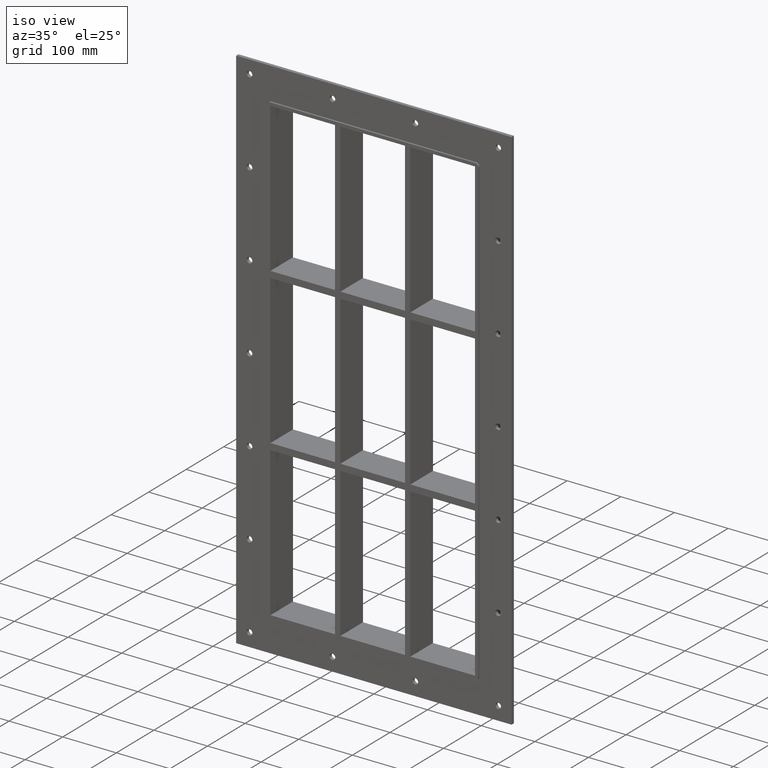
[diagram: clean part render]
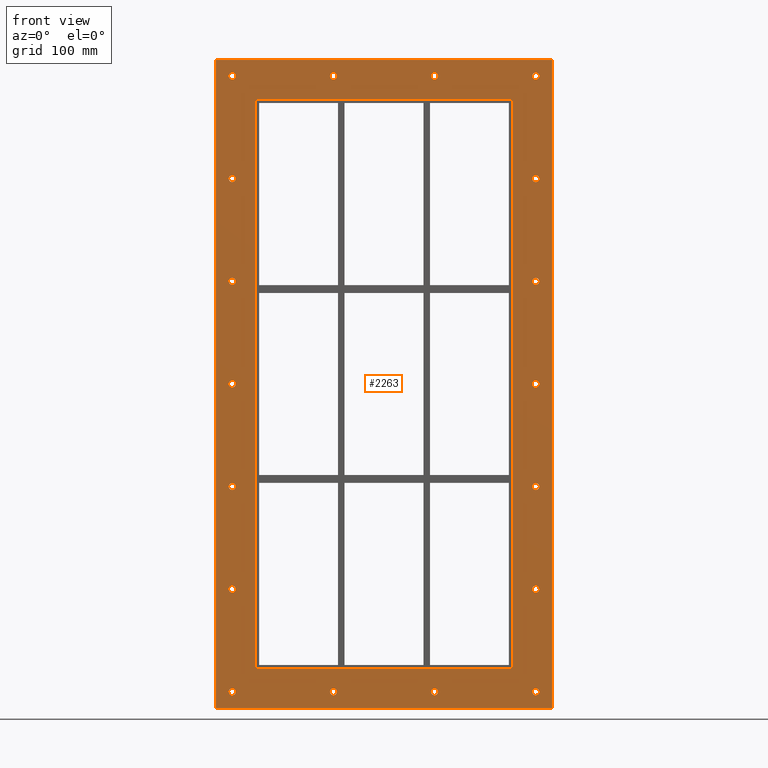
[diagram: tour spotlight — one face highlighted and labeled with its STEP entity id]
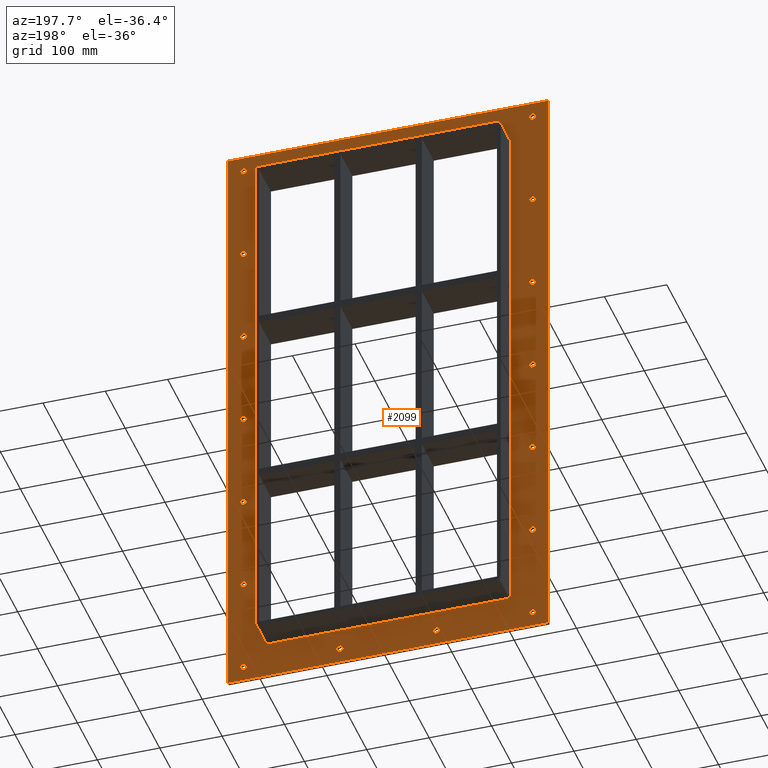
[diagram: tour spotlight — one face highlighted and labeled with its STEP entity id]
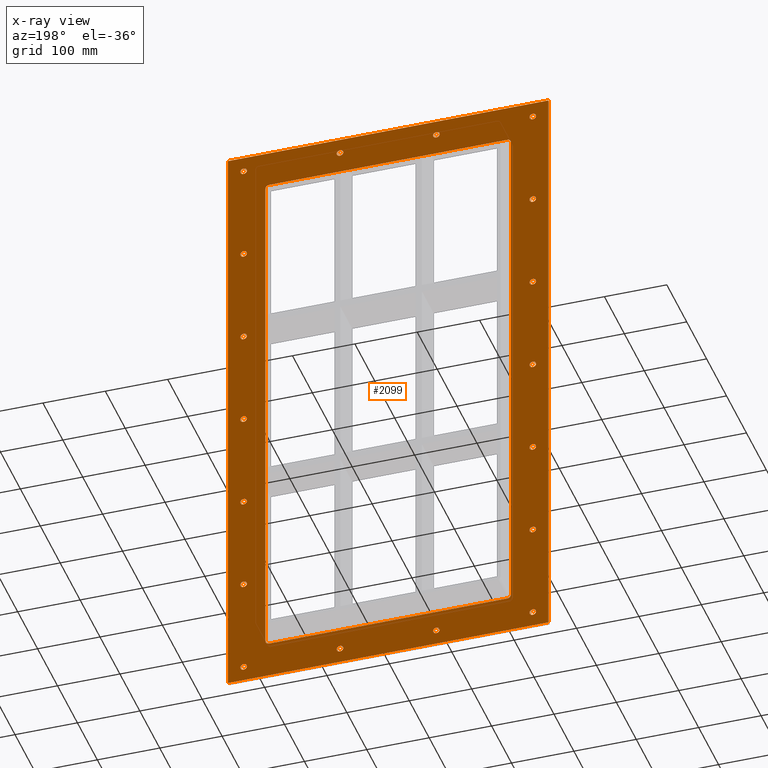
[diagram: x-ray of the same camera — body ghosted, this tour face saturated]
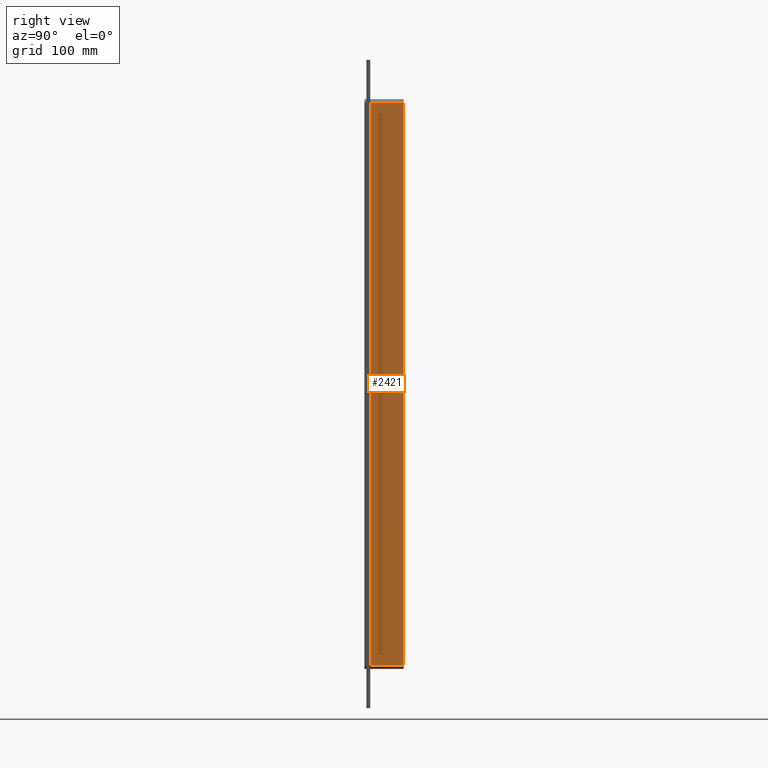
[diagram: tour spotlight — one face highlighted and labeled with its STEP entity id]
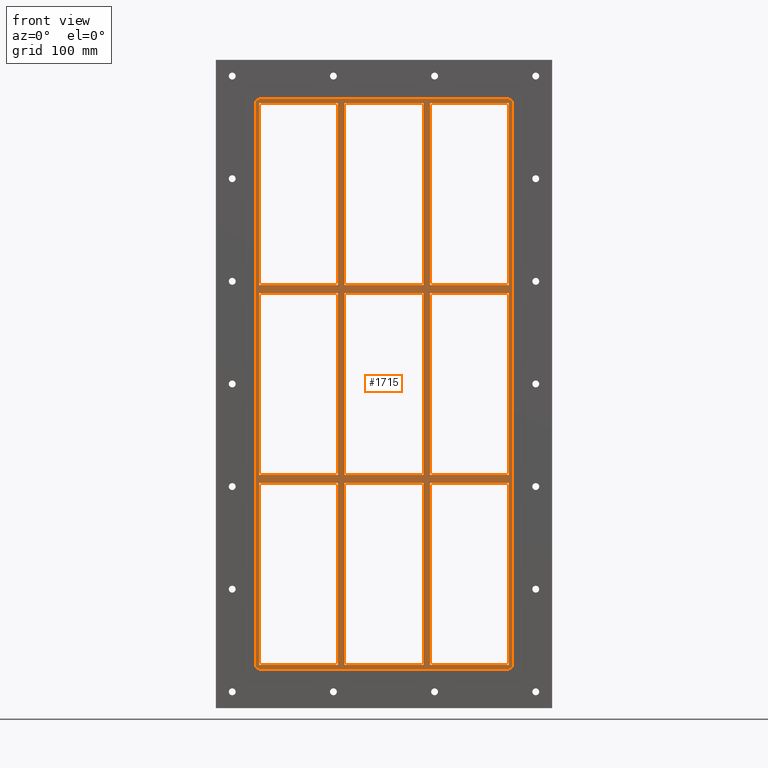
[diagram: tour spotlight — one face highlighted and labeled with its STEP entity id]
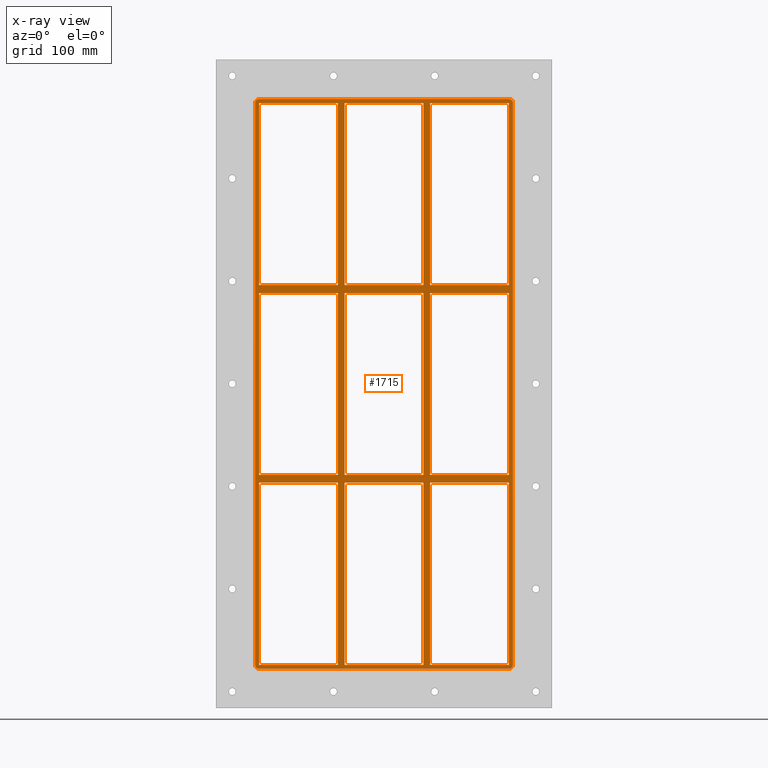
[diagram: x-ray of the same camera — body ghosted, this tour face saturated]
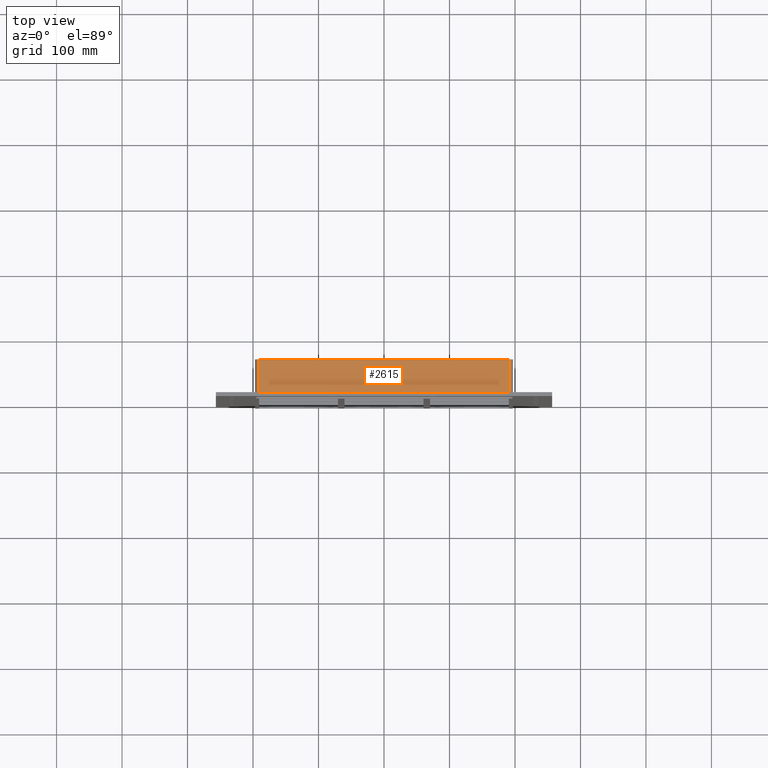
[diagram: tour spotlight — one face highlighted and labeled with its STEP entity id]
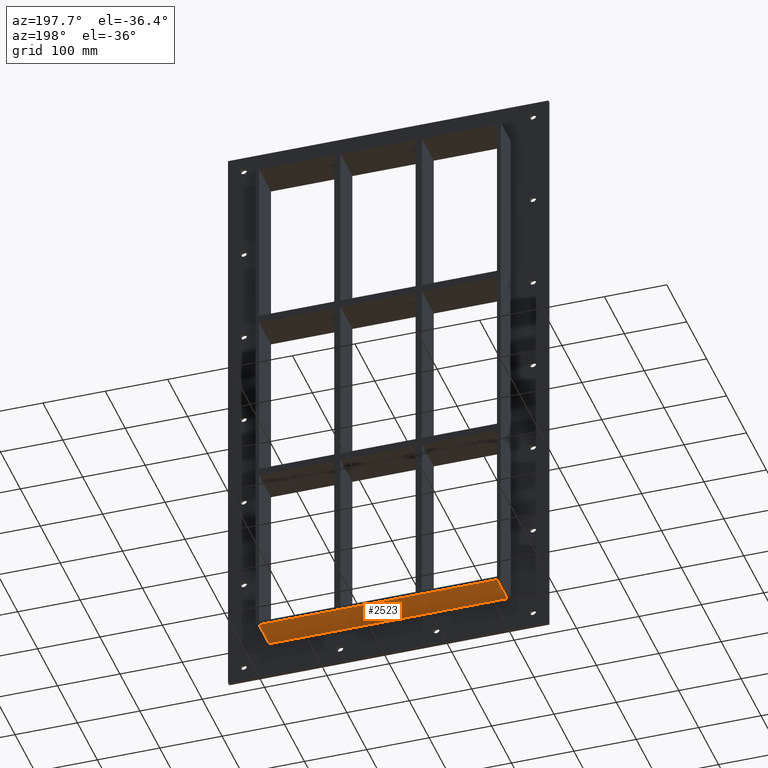
[diagram: tour spotlight — one face highlighted and labeled with its STEP entity id]
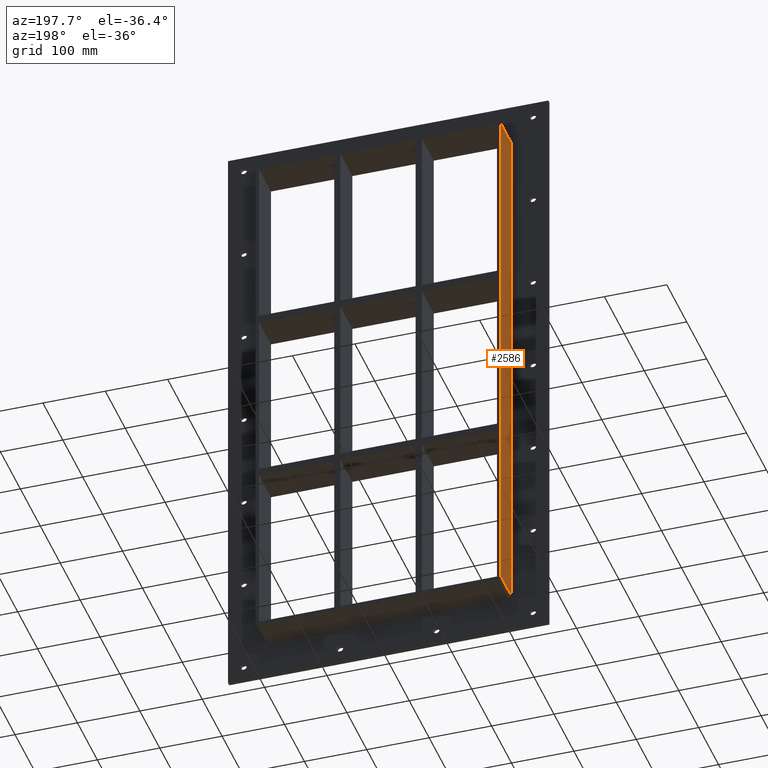
[diagram: tour spotlight — one face highlighted and labeled with its STEP entity id]
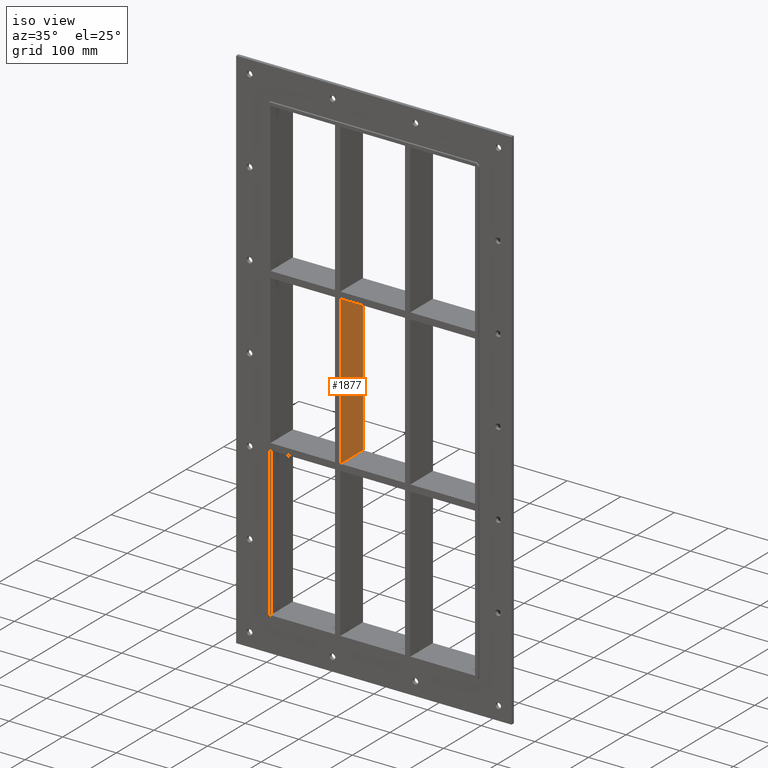
[diagram: tour spotlight — one face highlighted and labeled with its STEP entity id]
A machine part: a face-by-face anatomy tour. The part has 78 B-rep faces; the first image is the clean iso view, then the 8 largest visible faces are spotlighted one at a time (largest first), each with its STEP entity span.

Face 1 — front view, entity #2263. In plain terms, the highlighted planar face has unit normal (0, 1, 0).
Definition (entity closure, byte-faithful):
#84=CARTESIAN_POINT('',(-226.50000000000028,0.0,-470.0));
#85=VERTEX_POINT('',#84);
#86=CARTESIAN_POINT('',(-231.75000000000026,0.0,-470.0));
#87=DIRECTION('',(0.0,1.0,0.0));
#88=DIRECTION('',(1.0,0.0,0.0));
#89=AXIS2_PLACEMENT_3D('',#86,#87,#88);
#90=CIRCLE('',#89,5.25);
#91=EDGE_CURVE('',#85,#85,#90,.T.);
#112=CARTESIAN_POINT('',(236.99999999999974,0.0,-313.29999999999995));
#113=VERTEX_POINT('',#112);
#114=CARTESIAN_POINT('',(231.74999999999977,0.0,-313.29999999999995));
#115=DIRECTION('',(0.0,1.0,0.0));
#116=DIRECTION('',(1.0,0.0,0.0));
#117=AXIS2_PLACEMENT_3D('',#114,#115,#116);
#118=CIRCLE('',#117,5.25);
#119=EDGE_CURVE('',#113,#113,#118,.T.);
#140=CARTESIAN_POINT('',(-226.50000000000028,0.0,-313.29999999999995));
#141=VERTEX_POINT('',#140);
#142=CARTESIAN_POINT('',(-231.75000000000026,0.0,-313.29999999999995));
#143=DIRECTION('',(0.0,1.0,0.0));
#144=DIRECTION('',(1.0,0.0,0.0));
#145=AXIS2_PLACEMENT_3D('',#142,#143,#144);
#146=CIRCLE('',#145,5.25);
#147=EDGE_CURVE('',#141,#141,#146,.T.);
#168=CARTESIAN_POINT('',(236.99999999999974,0.0,-156.60000000000002));
#169=VERTEX_POINT('',#168);
#170=CARTESIAN_POINT('',(231.74999999999977,0.0,-156.60000000000002));
#171=DIRECTION('',(0.0,1.0,0.0));
#172=DIRECTION('',(1.0,0.0,0.0));
#173=AXIS2_PLACEMENT_3D('',#170,#171,#172);
#174=CIRCLE('',#173,5.25);
#175=EDGE_CURVE('',#169,#169,#174,.T.);
#196=CARTESIAN_POINT('',(-226.50000000000028,0.0,-156.60000000000002));
#197=VERTEX_POINT('',#196);
#198=CARTESIAN_POINT('',(-231.75000000000026,0.0,-156.60000000000002));
#199=DIRECTION('',(0.0,1.0,0.0));
#200=DIRECTION('',(1.0,0.0,0.0));
#201=AXIS2_PLACEMENT_3D('',#198,#199,#200);
#202=CIRCLE('',#201,5.25);
#203=EDGE_CURVE('',#197,#197,#202,.T.);
#224=CARTESIAN_POINT('',(236.99999999999974,0.0,0.099999999999998));
#225=VERTEX_POINT('',#224);
#226=CARTESIAN_POINT('',(231.74999999999977,0.0,0.099999999999998));
#227=DIRECTION('',(0.0,1.0,0.0));
#228=DIRECTION('',(1.0,0.0,0.0));
#229=AXIS2_PLACEMENT_3D('',#226,#227,#228);
#230=CIRCLE('',#229,5.25);
#231=EDGE_CURVE('',#225,#225,#230,.T.);
#252=CARTESIAN_POINT('',(-226.50000000000028,0.0,0.099999999999998));
#253=VERTEX_POINT('',#252);
#254=CARTESIAN_POINT('',(-231.75000000000026,0.0,0.099999999999998));
#255=DIRECTION('',(0.0,1.0,0.0));
#256=DIRECTION('',(1.0,0.0,0.0));
#257=AXIS2_PLACEMENT_3D('',#254,#255,#256);
#258=CIRCLE('',#257,5.25);
#259=EDGE_CURVE('',#253,#253,#258,.T.);
#280=CARTESIAN_POINT('',(236.99999999999974,0.0,156.79999999999995));
#281=VERTEX_POINT('',#280);
#282=CARTESIAN_POINT('',(231.74999999999977,0.0,156.79999999999995));
#283=DIRECTION('',(0.0,1.0,0.0));
#284=DIRECTION('',(1.0,0.0,0.0));
#285=AXIS2_PLACEMENT_3D('',#282,#283,#284);
#286=CIRCLE('',#285,5.25);
#287=EDGE_CURVE('',#281,#281,#286,.T.);
#308=CARTESIAN_POINT('',(-226.50000000000028,0.0,156.79999999999995));
#309=VERTEX_POINT('',#308);
#310=CARTESIAN_POINT('',(-231.75000000000026,0.0,156.79999999999995));
#311=DIRECTION('',(0.0,1.0,0.0));
#312=DIRECTION('',(1.0,0.0,0.0));
#313=AXIS2_PLACEMENT_3D('',#310,#311,#312);
#314=CIRCLE('',#313,5.25);
#315=EDGE_CURVE('',#309,#309,#314,.T.);
#336=CARTESIAN_POINT('',(236.99999999999974,0.0,313.49999999999994));
#337=VERTEX_POINT('',#336);
#338=CARTESIAN_POINT('',(231.74999999999977,0.0,313.49999999999994));
#339=DIRECTION('',(0.0,1.0,0.0));
#340=DIRECTION('',(1.0,0.0,0.0));
#341=AXIS2_PLACEMENT_3D('',#338,#339,#340);
#342=CIRCLE('',#341,5.25);
#343=EDGE_CURVE('',#337,#337,#342,.T.);
#364=CARTESIAN_POINT('',(-226.50000000000028,0.0,313.49999999999994));
#365=VERTEX_POINT('',#364);
#366=CARTESIAN_POINT('',(-231.75000000000026,0.0,313.49999999999994));
#367=DIRECTION('',(0.0,1.0,0.0));
#368=DIRECTION('',(1.0,0.0,0.0));
#369=AXIS2_PLACEMENT_3D('',#366,#367,#368);
#370=CIRCLE('',#369,5.25);
#371=EDGE_CURVE('',#365,#365,#370,.T.);
#392=CARTESIAN_POINT('',(-72.000000000000284,0.0,470.19999999999993));
#393=VERTEX_POINT('',#392);
#394=CARTESIAN_POINT('',(-77.250000000000256,0.0,470.19999999999993));
#395=DIRECTION('',(0.0,1.0,0.0));
#396=DIRECTION('',(1.0,0.0,0.0));
#397=AXIS2_PLACEMENT_3D('',#394,#395,#396);
#398=CIRCLE('',#397,5.25);
#399=EDGE_CURVE('',#393,#393,#398,.T.);
#420=CARTESIAN_POINT('',(-72.000000000000284,0.0,-470.0));
#421=VERTEX_POINT('',#420);
#422=CARTESIAN_POINT('',(-77.250000000000256,0.0,-470.0));
#423=DIRECTION('',(0.0,1.0,0.0));
#424=DIRECTION('',(1.0,0.0,0.0));
#425=AXIS2_PLACEMENT_3D('',#422,#423,#424);
#426=CIRCLE('',#425,5.25);
#427=EDGE_CURVE('',#421,#421,#426,.T.);
#448=CARTESIAN_POINT('',(82.49999999999973,0.0,470.19999999999993));
#449=VERTEX_POINT('',#448);
#450=CARTESIAN_POINT('',(77.249999999999744,0.0,470.19999999999993));
#451=DIRECTION('',(0.0,1.0,0.0));
#452=DIRECTION('',(1.0,0.0,0.0));
#453=AXIS2_PLACEMENT_3D('',#450,#451,#452);
#454=CIRCLE('',#453,5.25);
#455=EDGE_CURVE('',#449,#449,#454,.T.);
#476=CARTESIAN_POINT('',(82.49999999999973,0.0,-470.0));
#477=VERTEX_POINT('',#476);
#478=CARTESIAN_POINT('',(77.249999999999744,0.0,-470.0));
#479=DIRECTION('',(0.0,1.0,0.0));
#480=DIRECTION('',(1.0,0.0,0.0));
#481=AXIS2_PLACEMENT_3D('',#478,#479,#480);
#482=CIRCLE('',#481,5.25);
#483=EDGE_CURVE('',#477,#477,#482,.T.);
#504=CARTESIAN_POINT('',(236.99999999999974,0.0,-470.0));
#505=VERTEX_POINT('',#504);
#506=CARTESIAN_POINT('',(231.74999999999977,0.0,-470.0));
#507=DIRECTION('',(0.0,1.0,0.0));
#508=DIRECTION('',(1.0,0.0,0.0));
#509=AXIS2_PLACEMENT_3D('',#506,#507,#508);
#510=CIRCLE('',#509,5.25);
#511=EDGE_CURVE('',#505,#505,#510,.T.);
#532=CARTESIAN_POINT('',(-226.50000000000028,0.0,470.19999999999993));
#533=VERTEX_POINT('',#532);
#534=CARTESIAN_POINT('',(-231.75000000000026,0.0,470.19999999999993));
#535=DIRECTION('',(0.0,1.0,0.0));
#536=DIRECTION('',(1.0,0.0,0.0));
#537=AXIS2_PLACEMENT_3D('',#534,#535,#536);
#538=CIRCLE('',#537,5.25);
#539=EDGE_CURVE('',#533,#533,#538,.T.);
#560=CARTESIAN_POINT('',(236.99999999999974,0.0,470.19999999999993));
#561=VERTEX_POINT('',#560);
#562=CARTESIAN_POINT('',(231.74999999999977,0.0,470.19999999999993));
#563=DIRECTION('',(0.0,1.0,0.0));
#564=DIRECTION('',(1.0,0.0,0.0));
#565=AXIS2_PLACEMENT_3D('',#562,#563,#564);
#566=CIRCLE('',#565,5.25);
#567=EDGE_CURVE('',#561,#561,#566,.T.);
#2100=CARTESIAN_POINT('',(0.0,0.0,3.402666E-014));
#2101=DIRECTION('',(0.0,1.0,0.0));
#2102=DIRECTION('',(0.0,0.0,1.0));
#2103=AXIS2_PLACEMENT_3D('',#2100,#2101,#2102);
#2104=PLANE('',#2103);
#2105=CARTESIAN_POINT('',(-256.75000000000011,0.0,495.00000000000006));
#2106=VERTEX_POINT('',#2105);
#2107=CARTESIAN_POINT('',(256.75000000000011,0.0,495.00000000000006));
#2108=VERTEX_POINT('',#2107);
#2109=CARTESIAN_POINT('',(-256.75000000000011,0.0,495.00000000000006));
#2110=DIRECTION('',(1.0,0.0,0.0));
#2111=VECTOR('',#2110,513.50000000000023);
#2112=LINE('',#2109,#2111);
#2113=EDGE_CURVE('',#2106,#2108,#2112,.T.);
#2114=ORIENTED_EDGE('',*,*,#2113,.F.);
#2115=CARTESIAN_POINT('',(-256.75000000000011,0.0,-495.0));
#2116=VERTEX_POINT('',#2115);
#2117=CARTESIAN_POINT('',(-256.75000000000011,0.0,-495.0));
#2118=DIRECTION('',(0.0,0.0,1.0));
#2119=VECTOR('',#2118,990.0);
#2120=LINE('',#2117,#2119);
#2121=EDGE_CURVE('',#2116,#2106,#2120,.T.);
#2122=ORIENTED_EDGE('',*,*,#2121,.F.);
#2123=CARTESIAN_POINT('',(256.75000000000011,0.0,-495.0));
#2124=VERTEX_POINT('',#2123);
#2125=CARTESIAN_POINT('',(256.75000000000011,0.0,-495.0));
#2126=DIRECTION('',(-1.0,0.0,0.0));
#2127=VECTOR('',#2126,513.50000000000023);
#2128=LINE('',#2125,#2127);
#2129=EDGE_CURVE('',#2124,#2116,#2128,.T.);
#2130=ORIENTED_EDGE('',*,*,#2129,.F.);
#2131=CARTESIAN_POINT('',(256.75000000000011,0.0,495.00000000000006));
#2132=DIRECTION('',(0.0,0.0,-1.0));
#2133=VECTOR('',#2132,990.0);
#2134=LINE('',#2131,#2133);
#2135=EDGE_CURVE('',#2108,#2124,#2134,.T.);
#2136=ORIENTED_EDGE('',*,*,#2135,.F.);
#2137=EDGE_LOOP('',(#2114,#2122,#2130,#2136));
#2138=FACE_OUTER_BOUND('',#2137,.T.);
#2139=ORIENTED_EDGE('',*,*,#91,.T.);
#2140=EDGE_LOOP('',(#2139));
#2141=FACE_BOUND('',#2140,.T.);
#2142=ORIENTED_EDGE('',*,*,#119,.T.);
#2143=EDGE_LOOP('',(#2142));
#2144=FACE_BOUND('',#2143,.T.);
#2145=ORIENTED_EDGE('',*,*,#147,.T.);
#2146=EDGE_LOOP('',(#2145));
#2147=FACE_BOUND('',#2146,.T.);
#2148=ORIENTED_EDGE('',*,*,#175,.T.);
#2149=EDGE_LOOP('',(#2148));
#2150=FACE_BOUND('',#2149,.T.);
#2151=ORIENTED_EDGE('',*,*,#203,.T.);
#2152=EDGE_LOOP('',(#2151));
#2153=FACE_BOUND('',#2152,.T.);
#2154=ORIENTED_EDGE('',*,*,#231,.T.);
#2155=EDGE_LOOP('',(#2154));
#2156=FACE_BOUND('',#2155,.T.);
#2157=ORIENTED_EDGE('',*,*,#259,.T.);
#2158=EDGE_LOOP('',(#2157));
#2159=FACE_BOUND('',#2158,.T.);
#2160=ORIENTED_EDGE('',*,*,#287,.T.);
#2161=EDGE_LOOP('',(#2160));
#2162=FACE_BOUND('',#2161,.T.);
#2163=ORIENTED_EDGE('',*,*,#315,.T.);
#2164=EDGE_LOOP('',(#2163));
#2165=FACE_BOUND('',#2164,.T.);
#2166=ORIENTED_EDGE('',*,*,#343,.T.);
#2167=EDGE_LOOP('',(#2166));
#2168=FACE_BOUND('',#2167,.T.);
#2169=ORIENTED_EDGE('',*,*,#371,.T.);
#2170=EDGE_LOOP('',(#2169));
#2171=FACE_BOUND('',#2170,.T.);
#2172=ORIENTED_EDGE('',*,*,#399,.T.);
#2173=EDGE_LOOP('',(#2172));
#2174=FACE_BOUND('',#2173,.T.);
#2175=ORIENTED_EDGE('',*,*,#427,.T.);
#2176=EDGE_LOOP('',(#2175));
#2177=FACE_BOUND('',#2176,.T.);
#2178=ORIENTED_EDGE('',*,*,#455,.T.);
#2179=EDGE_LOOP('',(#2178));
#2180=FACE_BOUND('',#2179,.T.);
#2181=ORIENTED_EDGE('',*,*,#483,.T.);
#2182=EDGE_LOOP('',(#2181));
#2183=FACE_BOUND('',#2182,.T.);
#2184=ORIENTED_EDGE('',*,*,#511,.T.);
#2185=EDGE_LOOP('',(#2184));
#2186=FACE_BOUND('',#2185,.T.);
#2187=ORIENTED_EDGE('',*,*,#539,.T.);
#2188=EDGE_LOOP('',(#2187));
#2189=FACE_BOUND('',#2188,.T.);
#2190=ORIENTED_EDGE('',*,*,#567,.T.);
#2191=EDGE_LOOP('',(#2190));
#2192=FACE_BOUND('',#2191,.T.);
#2193=CARTESIAN_POINT('',(-196.75000000000006,0.0,-429.00000000000006));
#2194=VERTEX_POINT('',#2193);
#2195=CARTESIAN_POINT('',(-190.75000000000003,0.0,-435.00000000000006));
#2196=VERTEX_POINT('',#2195);
#2197=CARTESIAN_POINT('',(-190.75000000000003,0.0,-429.00000000000006));
#2198=DIRECTION('',(0.0,-1.0,0.0));
#2199=DIRECTION('',(-0.707106781186552,0.0,-0.707106781186543));
#2200=AXIS2_PLACEMENT_3D('',#2197,#2198,#2199);
#2201=CIRCLE('',#2200,6.000000000000001);
#2202=EDGE_CURVE('',#2194,#2196,#2201,.T.);
#2203=ORIENTED_EDGE('',*,*,#2202,.F.);
#2204=CARTESIAN_POINT('',(-196.75000000000006,0.0,429.00000000000006));
#2205=VERTEX_POINT('',#2204);
#2206=CARTESIAN_POINT('',(-196.75000000000006,0.0,429.0));
#2207=DIRECTION('',(0.0,0.0,-1.0));
#2208=VECTOR('',#2207,858.0);
#2209=LINE('',#2206,#2208);
#2210=EDGE_CURVE('',#2205,#2194,#2209,.T.);
#2211=ORIENTED_EDGE('',*,*,#2210,.F.);
#2212=CARTESIAN_POINT('',(-190.75000000000003,0.0,435.00000000000006));
#2213=VERTEX_POINT('',#2212);
#2214=CARTESIAN_POINT('',(-190.75000000000003,0.0,429.00000000000006));
#2215=DIRECTION('',(0.0,-1.0,0.0));
#2216=DIRECTION('',(-0.707106781186552,0.0,0.707106781186543));
#2217=AXIS2_PLACEMENT_3D('',#2214,#2215,#2216);
#2218=CIRCLE('',#2217,6.000000000000001);
#2219=EDGE_CURVE('',#2213,#2205,#2218,.T.);
#2220=ORIENTED_EDGE('',*,*,#2219,.F.);
#2221=CARTESIAN_POINT('',(190.75000000000003,0.0,435.00000000000006));
#2222=VERTEX_POINT('',#2221);
#2223=CARTESIAN_POINT('',(190.75000000000003,0.0,435.00000000000006));
#2224=DIRECTION('',(-1.0,0.0,0.0));
#2225=VECTOR('',#2224,381.50000000000006);
#2226=LINE('',#2223,#2225);
#2227=EDGE_CURVE('',#2222,#2213,#2226,.T.);
#2228=ORIENTED_EDGE('',*,*,#2227,.F.);
#2229=CARTESIAN_POINT('',(196.75000000000006,0.0,429.00000000000006));
#2230=VERTEX_POINT('',#2229);
#2231=CARTESIAN_POINT('',(190.75000000000003,0.0,429.00000000000006));
#2232=DIRECTION('',(0.0,-1.0,0.0));
#2233=DIRECTION('',(0.707106781186552,0.0,0.707106781186543));
#2234=AXIS2_PLACEMENT_3D('',#2231,#2232,#2233);
#2235=CIRCLE('',#2234,6.000000000000001);
#2236=EDGE_CURVE('',#2230,#2222,#2235,.T.);
#2237=ORIENTED_EDGE('',*,*,#2236,.F.);
#2238=CARTESIAN_POINT('',(196.75000000000006,0.0,-429.00000000000006));
#2239=VERTEX_POINT('',#2238);
#2240=CARTESIAN_POINT('',(196.75000000000006,0.0,-429.0));
#2241=DIRECTION('',(0.0,0.0,1.0));
#2242=VECTOR('',#2241,858.0);
#2243=LINE('',#2240,#2242);
#2244=EDGE_CURVE('',#2239,#2230,#2243,.T.);
#2245=ORIENTED_EDGE('',*,*,#2244,.F.);
#2246=CARTESIAN_POINT('',(190.75000000000003,0.0,-435.00000000000006));
#2247=VERTEX_POINT('',#2246);
#2248=CARTESIAN_POINT('',(190.75000000000003,0.0,-429.00000000000006));
#2249=DIRECTION('',(0.0,-1.0,0.0));
#2250=DIRECTION('',(0.707106781186552,0.0,-0.707106781186543));
#2251=AXIS2_PLACEMENT_3D('',#2248,#2249,#2250);
#2252=CIRCLE('',#2251,6.000000000000001);
#2253=EDGE_CURVE('',#2247,#2239,#2252,.T.);
#2254=ORIENTED_EDGE('',*,*,#2253,.F.);
#2255=CARTESIAN_POINT('',(-190.75000000000003,0.0,-435.00000000000006));
#2256=DIRECTION('',(1.0,0.0,0.0));
#2257=VECTOR('',#2256,381.50000000000006);
#2258=LINE('',#2255,#2257);
#2259=EDGE_CURVE('',#2196,#2247,#2258,.T.);
#2260=ORIENTED_EDGE('',*,*,#2259,.F.);
#2261=EDGE_LOOP('',(#2203,#2211,#2220,#2228,#2237,#2245,#2254,#2260));
#2262=FACE_BOUND('',#2261,.T.);
#2263=ADVANCED_FACE('',(#2138,#2141,#2144,#2147,#2150,#2153,#2156,#2159,#2162,#2165,#2168,#2171,#2174,#2177,#2180,#2183,#2186,#2189,#2192,#2262),#2104,.F.);

Face 2 — auxiliary view, entity #2099. An x-ray twin of the same camera follows (body ghosted, this face saturated) — the face is partly hidden behind the body. In plain terms, the highlighted planar face has unit normal (0, 1, 0).
Definition (entity closure, byte-faithful):
#73=CARTESIAN_POINT('',(-237.00000000000023,5.999999999999943,-470.0));
#74=VERTEX_POINT('',#73);
#75=CARTESIAN_POINT('',(-231.75000000000026,5.999999999999943,-470.0));
#76=DIRECTION('',(0.0,-1.0,0.0));
#77=DIRECTION('',(1.0,0.0,0.0));
#78=AXIS2_PLACEMENT_3D('',#75,#76,#77);
#79=CIRCLE('',#78,5.25);
#80=EDGE_CURVE('',#74,#74,#79,.T.);
#101=CARTESIAN_POINT('',(226.49999999999977,5.999999999999943,-313.29999999999995));
#102=VERTEX_POINT('',#101);
#103=CARTESIAN_POINT('',(231.74999999999977,5.999999999999943,-313.29999999999995));
#104=DIRECTION('',(0.0,-1.0,0.0));
#105=DIRECTION('',(1.0,0.0,0.0));
#106=AXIS2_PLACEMENT_3D('',#103,#104,#105);
#107=CIRCLE('',#106,5.25);
#108=EDGE_CURVE('',#102,#102,#107,.T.);
#129=CARTESIAN_POINT('',(-237.00000000000023,5.999999999999943,-313.29999999999995));
#130=VERTEX_POINT('',#129);
#131=CARTESIAN_POINT('',(-231.75000000000026,5.999999999999943,-313.29999999999995));
#132=DIRECTION('',(0.0,-1.0,0.0));
#133=DIRECTION('',(1.0,0.0,0.0));
#134=AXIS2_PLACEMENT_3D('',#131,#132,#133);
#135=CIRCLE('',#134,5.25);
#136=EDGE_CURVE('',#130,#130,#135,.T.);
#157=CARTESIAN_POINT('',(226.49999999999977,5.999999999999943,-156.60000000000002));
#158=VERTEX_POINT('',#157);
#159=CARTESIAN_POINT('',(231.74999999999977,5.999999999999943,-156.60000000000002));
#160=DIRECTION('',(0.0,-1.0,0.0));
#161=DIRECTION('',(1.0,0.0,0.0));
#162=AXIS2_PLACEMENT_3D('',#159,#160,#161);
#163=CIRCLE('',#162,5.25);
#164=EDGE_CURVE('',#158,#158,#163,.T.);
#185=CARTESIAN_POINT('',(-237.00000000000023,5.999999999999943,-156.60000000000002));
#186=VERTEX_POINT('',#185);
#187=CARTESIAN_POINT('',(-231.75000000000026,5.999999999999943,-156.60000000000002));
#188=DIRECTION('',(0.0,-1.0,0.0));
#189=DIRECTION('',(1.0,0.0,0.0));
#190=AXIS2_PLACEMENT_3D('',#187,#188,#189);
#191=CIRCLE('',#190,5.25);
#192=EDGE_CURVE('',#186,#186,#191,.T.);
#213=CARTESIAN_POINT('',(226.49999999999977,5.999999999999943,0.099999999999998));
#214=VERTEX_POINT('',#213);
#215=CARTESIAN_POINT('',(231.74999999999977,5.999999999999943,0.099999999999998));
#216=DIRECTION('',(0.0,-1.0,0.0));
#217=DIRECTION('',(1.0,0.0,0.0));
#218=AXIS2_PLACEMENT_3D('',#215,#216,#217);
#219=CIRCLE('',#218,5.25);
#220=EDGE_CURVE('',#214,#214,#219,.T.);
#241=CARTESIAN_POINT('',(-237.00000000000023,5.999999999999943,0.099999999999998));
#242=VERTEX_POINT('',#241);
#243=CARTESIAN_POINT('',(-231.75000000000026,5.999999999999943,0.099999999999998));
#244=DIRECTION('',(0.0,-1.0,0.0));
#245=DIRECTION('',(1.0,0.0,0.0));
#246=AXIS2_PLACEMENT_3D('',#243,#244,#245);
#247=CIRCLE('',#246,5.25);
#248=EDGE_CURVE('',#242,#242,#247,.T.);
#269=CARTESIAN_POINT('',(226.49999999999977,5.999999999999943,156.79999999999995));
#270=VERTEX_POINT('',#269);
#271=CARTESIAN_POINT('',(231.74999999999977,5.999999999999943,156.79999999999995));
#272=DIRECTION('',(0.0,-1.0,0.0));
#273=DIRECTION('',(1.0,0.0,0.0));
#274=AXIS2_PLACEMENT_3D('',#271,#272,#273);
#275=CIRCLE('',#274,5.25);
#276=EDGE_CURVE('',#270,#270,#275,.T.);
#297=CARTESIAN_POINT('',(-237.00000000000023,5.999999999999943,156.79999999999995));
#298=VERTEX_POINT('',#297);
#299=CARTESIAN_POINT('',(-231.75000000000026,5.999999999999943,156.79999999999995));
#300=DIRECTION('',(0.0,-1.0,0.0));
#301=DIRECTION('',(1.0,0.0,0.0));
#302=AXIS2_PLACEMENT_3D('',#299,#300,#301);
#303=CIRCLE('',#302,5.25);
#304=EDGE_CURVE('',#298,#298,#303,.T.);
#325=CARTESIAN_POINT('',(226.49999999999977,5.999999999999943,313.49999999999994));
#326=VERTEX_POINT('',#325);
#327=CARTESIAN_POINT('',(231.74999999999977,5.999999999999943,313.49999999999994));
#328=DIRECTION('',(0.0,-1.0,0.0));
#329=DIRECTION('',(1.0,0.0,0.0));
#330=AXIS2_PLACEMENT_3D('',#327,#328,#329);
#331=CIRCLE('',#330,5.25);
#332=EDGE_CURVE('',#326,#326,#331,.T.);
#353=CARTESIAN_POINT('',(-237.00000000000023,5.999999999999943,313.49999999999994));
#354=VERTEX_POINT('',#353);
#355=CARTESIAN_POINT('',(-231.75000000000026,5.999999999999943,313.49999999999994));
#356=DIRECTION('',(0.0,-1.0,0.0));
#357=DIRECTION('',(1.0,0.0,0.0));
#358=AXIS2_PLACEMENT_3D('',#355,#356,#357);
#359=CIRCLE('',#358,5.25);
#360=EDGE_CURVE('',#354,#354,#359,.T.);
#381=CARTESIAN_POINT('',(-82.500000000000256,5.999999999999943,470.19999999999993));
#382=VERTEX_POINT('',#381);
#383=CARTESIAN_POINT('',(-77.250000000000256,5.999999999999943,470.19999999999993));
#384=DIRECTION('',(0.0,-1.0,0.0));
#385=DIRECTION('',(1.0,0.0,0.0));
#386=AXIS2_PLACEMENT_3D('',#383,#384,#385);
#387=CIRCLE('',#386,5.25);
#388=EDGE_CURVE('',#382,#382,#387,.T.);
#409=CARTESIAN_POINT('',(-82.500000000000256,5.999999999999943,-470.0));
#410=VERTEX_POINT('',#409);
#411=CARTESIAN_POINT('',(-77.250000000000256,5.999999999999943,-470.0));
#412=DIRECTION('',(0.0,-1.0,0.0));
#413=DIRECTION('',(1.0,0.0,0.0));
#414=AXIS2_PLACEMENT_3D('',#411,#412,#413);
#415=CIRCLE('',#414,5.25);
#416=EDGE_CURVE('',#410,#410,#415,.T.);
#437=CARTESIAN_POINT('',(71.999999999999758,5.999999999999943,470.19999999999993));
#438=VERTEX_POINT('',#437);
#439=CARTESIAN_POINT('',(77.249999999999744,5.999999999999943,470.19999999999993));
#440=DIRECTION('',(0.0,-1.0,0.0));
#441=DIRECTION('',(1.0,0.0,0.0));
#442=AXIS2_PLACEMENT_3D('',#439,#440,#441);
#443=CIRCLE('',#442,5.25);
#444=EDGE_CURVE('',#438,#438,#443,.T.);
#465=CARTESIAN_POINT('',(71.999999999999758,5.999999999999943,-470.0));
#466=VERTEX_POINT('',#465);
#467=CARTESIAN_POINT('',(77.249999999999744,5.999999999999943,-470.0));
#468=DIRECTION('',(0.0,-1.0,0.0));
#469=DIRECTION('',(1.0,0.0,0.0));
#470=AXIS2_PLACEMENT_3D('',#467,#468,#469);
#471=CIRCLE('',#470,5.25);
#472=EDGE_CURVE('',#466,#466,#471,.T.);
#493=CARTESIAN_POINT('',(226.49999999999977,5.999999999999943,-470.0));
#494=VERTEX_POINT('',#493);
#495=CARTESIAN_POINT('',(231.74999999999977,5.999999999999943,-470.0));
#496=DIRECTION('',(0.0,-1.0,0.0));
#497=DIRECTION('',(1.0,0.0,0.0));
#498=AXIS2_PLACEMENT_3D('',#495,#496,#497);
#499=CIRCLE('',#498,5.25);
#500=EDGE_CURVE('',#494,#494,#499,.T.);
#521=CARTESIAN_POINT('',(-237.00000000000023,5.999999999999943,470.19999999999993));
#522=VERTEX_POINT('',#521);
#523=CARTESIAN_POINT('',(-231.75000000000026,5.999999999999943,470.19999999999993));
#524=DIRECTION('',(0.0,-1.0,0.0));
#525=DIRECTION('',(1.0,0.0,0.0));
#526=AXIS2_PLACEMENT_3D('',#523,#524,#525);
#527=CIRCLE('',#526,5.25);
#528=EDGE_CURVE('',#522,#522,#527,.T.);
#549=CARTESIAN_POINT('',(226.49999999999977,5.999999999999943,470.19999999999993));
#550=VERTEX_POINT('',#549);
#551=CARTESIAN_POINT('',(231.74999999999977,5.999999999999943,470.19999999999993));
#552=DIRECTION('',(0.0,-1.0,0.0));
#553=DIRECTION('',(1.0,0.0,0.0));
#554=AXIS2_PLACEMENT_3D('',#551,#552,#553);
#555=CIRCLE('',#554,5.25);
#556=EDGE_CURVE('',#550,#550,#555,.T.);
#1936=CARTESIAN_POINT('',(0.0,6.000000000000001,3.402666E-014));
#1937=DIRECTION('',(0.0,1.0,0.0));
#1938=DIRECTION('',(0.0,0.0,1.0));
#1939=AXIS2_PLACEMENT_3D('',#1936,#1937,#1938);
#1940=PLANE('',#1939);
#1941=CARTESIAN_POINT('',(-256.75000000000011,6.000000000000001,495.00000000000006));
#1942=VERTEX_POINT('',#1941);
#1943=CARTESIAN_POINT('',(256.75000000000011,6.000000000000001,495.00000000000006));
#1944=VERTEX_POINT('',#1943);
#1945=CARTESIAN_POINT('',(-256.75000000000011,6.000000000000001,495.00000000000006));
#1946=DIRECTION('',(1.0,0.0,0.0));
#1947=VECTOR('',#1946,513.50000000000023);
#1948=LINE('',#1945,#1947);
#1949=EDGE_CURVE('',#1942,#1944,#1948,.T.);
#1950=ORIENTED_EDGE('',*,*,#1949,.T.);
#1951=CARTESIAN_POINT('',(256.75000000000011,6.000000000000001,-494.99999999999994));
#1952=VERTEX_POINT('',#1951);
#1953=CARTESIAN_POINT('',(256.75000000000011,6.000000000000001,495.00000000000006));
#1954=DIRECTION('',(0.0,0.0,-1.0));
#1955=VECTOR('',#1954,990.0);
#1956=LINE('',#1953,#1955);
#1957=EDGE_CURVE('',#1944,#1952,#1956,.T.);
#1958=ORIENTED_EDGE('',*,*,#1957,.T.);
#1959=CARTESIAN_POINT('',(-256.75000000000011,6.000000000000001,-494.99999999999994));
#1960=VERTEX_POINT('',#1959);
#1961=CARTESIAN_POINT('',(256.75000000000011,6.000000000000001,-495.0));
#1962=DIRECTION('',(-1.0,0.0,0.0));
#1963=VECTOR('',#1962,513.50000000000023);
#1964=LINE('',#1961,#1963);
#1965=EDGE_CURVE('',#1952,#1960,#1964,.T.);
#1966=ORIENTED_EDGE('',*,*,#1965,.T.);
#1967=CARTESIAN_POINT('',(-256.75000000000011,6.000000000000001,-495.0));
#1968=DIRECTION('',(0.0,0.0,1.0));
#1969=VECTOR('',#1968,990.0);
#1970=LINE('',#1967,#1969);
#1971=EDGE_CURVE('',#1960,#1942,#1970,.T.);
#1972=ORIENTED_EDGE('',*,*,#1971,.T.);
#1973=EDGE_LOOP('',(#1950,#1958,#1966,#1972));
#1974=FACE_OUTER_BOUND('',#1973,.T.);
#1975=ORIENTED_EDGE('',*,*,#80,.T.);
#1976=EDGE_LOOP('',(#1975));
#1977=FACE_BOUND('',#1976,.T.);
#1978=ORIENTED_EDGE('',*,*,#108,.T.);
#1979=EDGE_LOOP('',(#1978));
#1980=FACE_BOUND('',#1979,.T.);
#1981=ORIENTED_EDGE('',*,*,#136,.T.);
#1982=EDGE_LOOP('',(#1981));
#1983=FACE_BOUND('',#1982,.T.);
#1984=ORIENTED_EDGE('',*,*,#164,.T.);
#1985=EDGE_LOOP('',(#1984));
#1986=FACE_BOUND('',#1985,.T.);
#1987=ORIENTED_EDGE('',*,*,#192,.T.);
#1988=EDGE_LOOP('',(#1987));
#1989=FACE_BOUND('',#1988,.T.);
#1990=ORIENTED_EDGE('',*,*,#220,.T.);
#1991=EDGE_LOOP('',(#1990));
#1992=FACE_BOUND('',#1991,.T.);
#1993=ORIENTED_EDGE('',*,*,#248,.T.);
#1994=EDGE_LOOP('',(#1993));
#1995=FACE_BOUND('',#1994,.T.);
#1996=ORIENTED_EDGE('',*,*,#276,.T.);
#1997=EDGE_LOOP('',(#1996));
#1998=FACE_BOUND('',#1997,.T.);
#1999=ORIENTED_EDGE('',*,*,#304,.T.);
#2000=EDGE_LOOP('',(#1999));
#2001=FACE_BOUND('',#2000,.T.);
#2002=ORIENTED_EDGE('',*,*,#332,.T.);
#2003=EDGE_LOOP('',(#2002));
#2004=FACE_BOUND('',#2003,.T.);
#2005=ORIENTED_EDGE('',*,*,#360,.T.);
#2006=EDGE_LOOP('',(#2005));
#2007=FACE_BOUND('',#2006,.T.);
#2008=ORIENTED_EDGE('',*,*,#388,.T.);
#2009=EDGE_LOOP('',(#2008));
#2010=FACE_BOUND('',#2009,.T.);
#2011=ORIENTED_EDGE('',*,*,#416,.T.);
#2012=EDGE_LOOP('',(#2011));
#2013=FACE_BOUND('',#2012,.T.);
#2014=ORIENTED_EDGE('',*,*,#444,.T.);
#2015=EDGE_LOOP('',(#2014));
#2016=FACE_BOUND('',#2015,.T.);
#2017=ORIENTED_EDGE('',*,*,#472,.T.);
#2018=EDGE_LOOP('',(#2017));
#2019=FACE_BOUND('',#2018,.T.);
#2020=ORIENTED_EDGE('',*,*,#500,.T.);
#2021=EDGE_LOOP('',(#2020));
#2022=FACE_BOUND('',#2021,.T.);
#2023=ORIENTED_EDGE('',*,*,#528,.T.);
#2024=EDGE_LOOP('',(#2023));
#2025=FACE_BOUND('',#2024,.T.);
#2026=ORIENTED_EDGE('',*,*,#556,.T.);
#2027=EDGE_LOOP('',(#2026));
#2028=FACE_BOUND('',#2027,.T.);
#2029=CARTESIAN_POINT('',(-190.75000000000003,6.000000000000001,-435.00000000000006));
#2030=VERTEX_POINT('',#2029);
#2031=CARTESIAN_POINT('',(-196.75000000000006,6.000000000000001,-429.00000000000006));
#2032=VERTEX_POINT('',#2031);
#2033=CARTESIAN_POINT('',(-190.75000000000003,6.000000000000001,-429.00000000000006));
#2034=DIRECTION('',(0.0,1.0,0.0));
#2035=DIRECTION('',(-0.707106781186552,0.0,-0.707106781186543));
#2036=AXIS2_PLACEMENT_3D('',#2033,#2034,#2035);
#2037=CIRCLE('',#2036,6.000000000000001);
#2038=EDGE_CURVE('',#2030,#2032,#2037,.T.);
#2039=ORIENTED_EDGE('',*,*,#2038,.F.);
#2040=CARTESIAN_POINT('',(190.75000000000003,6.000000000000001,-435.00000000000006));
#2041=VERTEX_POINT('',#2040);
#2042=CARTESIAN_POINT('',(190.75000000000003,6.000000000000001,-435.00000000000006));
#2043=DIRECTION('',(-1.0,0.0,0.0));
#2044=VECTOR('',#2043,381.50000000000006);
#2045=LINE('',#2042,#2044);
#2046=EDGE_CURVE('',#2041,#2030,#2045,.T.);
#2047=ORIENTED_EDGE('',*,*,#2046,.F.);
#2048=CARTESIAN_POINT('',(196.75000000000006,6.000000000000001,-429.00000000000006));
#2049=VERTEX_POINT('',#2048);
#2050=CARTESIAN_POINT('',(190.75000000000003,6.000000000000001,-429.00000000000006));
#2051=DIRECTION('',(0.0,1.0,0.0));
#2052=DIRECTION('',(0.707106781186552,0.0,-0.707106781186543));
#2053=AXIS2_PLACEMENT_3D('',#2050,#2051,#2052);
#2054=CIRCLE('',#2053,6.000000000000001);
#2055=EDGE_CURVE('',#2049,#2041,#2054,.T.);
#2056=ORIENTED_EDGE('',*,*,#2055,.F.);
#2057=CARTESIAN_POINT('',(196.75000000000006,6.000000000000001,429.00000000000006));
#2058=VERTEX_POINT('',#2057);
#2059=CARTESIAN_POINT('',(196.75000000000006,6.000000000000001,429.00000000000006));
#2060=DIRECTION('',(0.0,0.0,-1.0));
#2061=VECTOR('',#2060,858.0);
#2062=LINE('',#2059,#2061);
#2063=EDGE_CURVE('',#2058,#2049,#2062,.T.);
#2064=ORIENTED_EDGE('',*,*,#2063,.F.);
#2065=CARTESIAN_POINT('',(190.75000000000003,6.000000000000001,435.00000000000006));
#2066=VERTEX_POINT('',#2065);
#2067=CARTESIAN_POINT('',(190.75000000000003,6.000000000000001,429.00000000000006));
#2068=DIRECTION('',(0.0,1.0,0.0));
#2069=DIRECTION('',(0.707106781186552,0.0,0.707106781186543));
#2070=AXIS2_PLACEMENT_3D('',#2067,#2068,#2069);
#2071=CIRCLE('',#2070,6.000000000000001);
#2072=EDGE_CURVE('',#2066,#2058,#2071,.T.);
#2073=ORIENTED_EDGE('',*,*,#2072,.F.);
#2074=CARTESIAN_POINT('',(-190.75000000000003,6.000000000000001,435.00000000000006));
#2075=VERTEX_POINT('',#2074);
#2076=CARTESIAN_POINT('',(-190.75000000000003,6.000000000000001,435.00000000000006));
#2077=DIRECTION('',(1.0,0.0,0.0));
#2078=VECTOR('',#2077,381.50000000000006);
#2079=LINE('',#2076,#2078);
#2080=EDGE_CURVE('',#2075,#2066,#2079,.T.);
#2081=ORIENTED_EDGE('',*,*,#2080,.F.);
#2082=CARTESIAN_POINT('',(-196.75000000000006,6.000000000000001,429.00000000000006));
#2083=VERTEX_POINT('',#2082);
#2084=CARTESIAN_POINT('',(-190.75000000000003,6.000000000000001,429.00000000000006));
#2085=DIRECTION('',(0.0,1.0,0.0));
#2086=DIRECTION('',(-0.707106781186552,0.0,0.707106781186543));
#2087=AXIS2_PLACEMENT_3D('',#2084,#2085,#2086);
#2088=CIRCLE('',#2087,6.000000000000001);
#2089=EDGE_CURVE('',#2083,#2075,#2088,.T.);
#2090=ORIENTED_EDGE('',*,*,#2089,.F.);
#2091=CARTESIAN_POINT('',(-196.75000000000006,6.000000000000001,-429.00000000000006));
#2092=DIRECTION('',(0.0,0.0,1.0));
#2093=VECTOR('',#2092,858.0);
#2094=LINE('',#2091,#2093);
#2095=EDGE_CURVE('',#2032,#2083,#2094,.T.);
#2096=ORIENTED_EDGE('',*,*,#2095,.F.);
#2097=EDGE_LOOP('',(#2039,#2047,#2056,#2064,#2073,#2081,#2090,#2096));
#2098=FACE_BOUND('',#2097,.T.);
#2099=ADVANCED_FACE('',(#1974,#1977,#1980,#1983,#1986,#1989,#1992,#1995,#1998,#2001,#2004,#2007,#2010,#2013,#2016,#2019,#2022,#2025,#2028,#2098),#1940,.T.);

Face 3 — right view, entity #2421. In plain terms, the highlighted planar face has unit normal (1, 0, 0).
Definition (entity closure, byte-faithful):
#1067=CARTESIAN_POINT('',(196.75000000000006,57.0,-429.0));
#1068=VERTEX_POINT('',#1067);
#1118=CARTESIAN_POINT('',(196.75000000000006,57.0,429.00000000000006));
#1119=VERTEX_POINT('',#1118);
#1127=CARTESIAN_POINT('',(196.75000000000006,57.0,429.00000000000006));
#1128=DIRECTION('',(0.0,0.0,-1.0));
#1129=VECTOR('',#1128,858.0);
#1130=LINE('',#1127,#1129);
#1131=EDGE_CURVE('',#1119,#1068,#1130,.T.);
#2048=CARTESIAN_POINT('',(196.75000000000006,6.000000000000001,-429.00000000000006));
#2049=VERTEX_POINT('',#2048);
#2057=CARTESIAN_POINT('',(196.75000000000006,6.000000000000001,429.00000000000006));
#2058=VERTEX_POINT('',#2057);
#2059=CARTESIAN_POINT('',(196.75000000000006,6.000000000000001,429.00000000000006));
#2060=DIRECTION('',(0.0,0.0,-1.0));
#2061=VECTOR('',#2060,858.0);
#2062=LINE('',#2059,#2061);
#2063=EDGE_CURVE('',#2058,#2049,#2062,.T.);
#2372=CARTESIAN_POINT('',(196.75000000000006,6.000000000000001,429.00000000000006));
#2373=DIRECTION('',(0.0,1.0,0.0));
#2374=VECTOR('',#2373,51.0);
#2375=LINE('',#2372,#2374);
#2376=EDGE_CURVE('',#2058,#1119,#2375,.T.);
#2405=CARTESIAN_POINT('',(196.75000000000006,0.0,435.00000000000006));
#2406=DIRECTION('',(1.0,0.0,0.0));
#2407=DIRECTION('',(0.0,0.0,-1.0));
#2408=AXIS2_PLACEMENT_3D('',#2405,#2406,#2407);
#2409=PLANE('',#2408);
#2410=ORIENTED_EDGE('',*,*,#2063,.T.);
#2411=CARTESIAN_POINT('',(196.75000000000006,57.0,-429.00000000000006));
#2412=DIRECTION('',(0.0,-1.0,0.0));
#2413=VECTOR('',#2412,51.0);
#2414=LINE('',#2411,#2413);
#2415=EDGE_CURVE('',#1068,#2049,#2414,.T.);
#2416=ORIENTED_EDGE('',*,*,#2415,.F.);
#2417=ORIENTED_EDGE('',*,*,#1131,.F.);
#2418=ORIENTED_EDGE('',*,*,#2376,.F.);
#2419=EDGE_LOOP('',(#2410,#2416,#2417,#2418));
#2420=FACE_OUTER_BOUND('',#2419,.T.);
#2421=ADVANCED_FACE('',(#2420),#2409,.T.);

Face 4 — front view, entity #1715. An x-ray twin of the same camera follows (body ghosted, this face saturated) — the face is partly hidden behind the body. In plain terms, the highlighted planar face has unit normal (0, 1, 0).
Definition (entity closure, byte-faithful):
#577=CARTESIAN_POINT('',(-70.250000000002132,-3.0,138.99999999998983));
#578=VERTEX_POINT('',#577);
#587=CARTESIAN_POINT('',(-190.75000000000045,-3.0,138.99999999998983));
#588=VERTEX_POINT('',#587);
#589=CARTESIAN_POINT('',(-70.250000000002103,-3.0,138.9999999999898));
#590=DIRECTION('',(-1.0,0.0,0.0));
#591=VECTOR('',#590,120.49999999999835);
#592=LINE('',#589,#591);
#593=EDGE_CURVE('',#578,#588,#592,.T.);
#619=CARTESIAN_POINT('',(70.250000000003638,-3.0,138.9999999999898));
#620=VERTEX_POINT('',#619);
#635=CARTESIAN_POINT('',(190.75000000000728,-3.0,138.9999999999898));
#636=VERTEX_POINT('',#635);
#643=CARTESIAN_POINT('',(190.75000000000728,-3.0,138.9999999999898));
#644=DIRECTION('',(-1.0,0.0,0.0));
#645=VECTOR('',#644,120.50000000000364);
#646=LINE('',#643,#645);
#647=EDGE_CURVE('',#636,#620,#646,.T.);
#657=CARTESIAN_POINT('',(60.249999999997868,-3.0,138.9999999999898));
#658=VERTEX_POINT('',#657);
#667=CARTESIAN_POINT('',(-60.249999999996362,-3.0,138.99999999998983));
#668=VERTEX_POINT('',#667);
#669=CARTESIAN_POINT('',(60.249999999997868,-3.0,138.9999999999898));
#670=DIRECTION('',(-1.0,0.0,0.0));
#671=VECTOR('',#670,120.49999999999423);
#672=LINE('',#669,#671);
#673=EDGE_CURVE('',#658,#668,#672,.T.);
#699=CARTESIAN_POINT('',(-70.250000000002132,-3.0,151.0));
#700=VERTEX_POINT('',#699);
#715=CARTESIAN_POINT('',(-190.75000000000045,-3.0,150.99999999999994));
#716=VERTEX_POINT('',#715);
#723=CARTESIAN_POINT('',(-190.75000000000045,-3.0,150.99999999999994));
#724=DIRECTION('',(1.0,0.0,0.0));
#725=VECTOR('',#724,120.49999999999832);
#726=LINE('',#723,#725);
#727=EDGE_CURVE('',#716,#700,#726,.T.);
#737=CARTESIAN_POINT('',(70.250000000003638,-3.0,151.00000000000014));
#738=VERTEX_POINT('',#737);
#747=CARTESIAN_POINT('',(190.75000000000023,-3.0,151.00000000000023));
#748=VERTEX_POINT('',#747);
#749=CARTESIAN_POINT('',(70.250000000003638,-3.0,151.00000000000014));
#750=DIRECTION('',(1.0,0.0,0.0));
#751=VECTOR('',#750,120.49999999999659);
#752=LINE('',#749,#751);
#753=EDGE_CURVE('',#738,#748,#752,.T.);
#779=CARTESIAN_POINT('',(60.24999999999789,-3.0,151.00000000000014));
#780=VERTEX_POINT('',#779);
#795=CARTESIAN_POINT('',(-60.249999999996362,-3.0,151.00000000000006));
#796=VERTEX_POINT('',#795);
#803=CARTESIAN_POINT('',(-60.249999999996362,-3.0,151.00000000000003));
#804=DIRECTION('',(1.0,0.0,0.0));
#805=VECTOR('',#804,120.49999999999426);
#806=LINE('',#803,#805);
#807=EDGE_CURVE('',#796,#780,#806,.T.);
#826=CARTESIAN_POINT('',(-190.75000000000003,-3.0,429.00000000000006));
#827=VERTEX_POINT('',#826);
#834=CARTESIAN_POINT('',(-190.75000000000003,-3.0,150.99999999999997));
#835=DIRECTION('',(0.0,0.0,1.0));
#836=VECTOR('',#835,278.00000000000011);
#837=LINE('',#834,#836);
#838=EDGE_CURVE('',#716,#827,#837,.T.);
#857=CARTESIAN_POINT('',(190.75000000000023,-3.0,-138.99999999999977));
#858=VERTEX_POINT('',#857);
#865=CARTESIAN_POINT('',(190.75000000000011,-3.0,138.99999999998983));
#866=DIRECTION('',(0.0,0.0,-1.0));
#867=VECTOR('',#866,277.99999999998954);
#868=LINE('',#865,#867);
#869=EDGE_CURVE('',#636,#858,#868,.T.);
#880=CARTESIAN_POINT('',(190.75000000000011,-3.0,429.00000000000006));
#881=VERTEX_POINT('',#880);
#882=CARTESIAN_POINT('',(190.75000000000011,-3.0,429.00000000000006));
#883=DIRECTION('',(0.0,0.0,-1.0));
#884=VECTOR('',#883,277.99999999999983);
#885=LINE('',#882,#884);
#886=EDGE_CURVE('',#881,#748,#885,.T.);
#911=CARTESIAN_POINT('',(60.249999999997819,-3.0,429.00000000000006));
#912=VERTEX_POINT('',#911);
#913=CARTESIAN_POINT('',(60.249999999997875,-3.0,151.00000000000017));
#914=DIRECTION('',(0.0,0.0,1.0));
#915=VECTOR('',#914,277.99999999999989);
#916=LINE('',#913,#915);
#917=EDGE_CURVE('',#780,#912,#916,.T.);
#950=CARTESIAN_POINT('',(70.250000000003638,-3.0,429.00000000000006));
#951=VERTEX_POINT('',#950);
#958=CARTESIAN_POINT('',(70.250000000003638,-3.0,429.00000000000006));
#959=DIRECTION('',(0.0,0.0,-1.0));
#960=VECTOR('',#959,277.99999999999989);
#961=LINE('',#958,#960);
#962=EDGE_CURVE('',#951,#738,#961,.T.);
#973=CARTESIAN_POINT('',(-70.250000000002188,-3.0,429.00000000000006));
#974=VERTEX_POINT('',#973);
#975=CARTESIAN_POINT('',(-70.250000000002132,-3.0,151.00000000000006));
#976=DIRECTION('',(0.0,0.0,1.0));
#977=VECTOR('',#976,278.0);
#978=LINE('',#975,#977);
#979=EDGE_CURVE('',#700,#974,#978,.T.);
#1012=CARTESIAN_POINT('',(-70.250000000002061,-3.0,-138.99999999999997));
#1013=VERTEX_POINT('',#1012);
#1020=CARTESIAN_POINT('',(-70.250000000002075,-3.0,-139.0));
#1021=DIRECTION('',(0.0,0.0,1.0));
#1022=VECTOR('',#1021,277.99999999998983);
#1023=LINE('',#1020,#1022);
#1024=EDGE_CURVE('',#1013,#578,#1023,.T.);
#1043=CARTESIAN_POINT('',(-60.249999999996362,-3.0,429.00000000000006));
#1044=VERTEX_POINT('',#1043);
#1051=CARTESIAN_POINT('',(-60.249999999996362,-3.0,429.00000000000006));
#1052=DIRECTION('',(0.0,0.0,-1.0));
#1053=VECTOR('',#1052,278.0);
#1054=LINE('',#1051,#1053);
#1055=EDGE_CURVE('',#1044,#796,#1054,.T.);
#1339=CARTESIAN_POINT('',(60.249999999997932,-3.0,-138.99999999999989));
#1340=VERTEX_POINT('',#1339);
#1347=CARTESIAN_POINT('',(60.249999999997939,-3.0,-138.99999999999989));
#1348=DIRECTION('',(0.0,0.0,1.0));
#1349=VECTOR('',#1348,277.99999999998971);
#1350=LINE('',#1347,#1349);
#1351=EDGE_CURVE('',#1340,#658,#1350,.T.);
#1361=CARTESIAN_POINT('',(60.249999999997939,-3.0,-151.00000000001017));
#1362=VERTEX_POINT('',#1361);
#1370=CARTESIAN_POINT('',(60.249999999997996,-3.0,-429.00000000000006));
#1371=VERTEX_POINT('',#1370);
#1378=CARTESIAN_POINT('',(60.249999999997996,-3.0,-429.00000000000006));
#1379=DIRECTION('',(0.0,0.0,1.0));
#1380=VECTOR('',#1379,277.99999999998988);
#1381=LINE('',#1378,#1380);
#1382=EDGE_CURVE('',#1371,#1362,#1381,.T.);
#1393=CARTESIAN_POINT('',(70.250000000003638,-3.0,-138.99999999999983));
#1394=VERTEX_POINT('',#1393);
#1395=CARTESIAN_POINT('',(70.250000000003638,-3.0,138.99999999998983));
#1396=DIRECTION('',(0.0,0.0,-1.0));
#1397=VECTOR('',#1396,277.99999999998965);
#1398=LINE('',#1395,#1397);
#1399=EDGE_CURVE('',#620,#1394,#1398,.T.);
#1416=CARTESIAN_POINT('',(70.250000000003638,-3.0,-151.00000000001017));
#1417=VERTEX_POINT('',#1416);
#1424=CARTESIAN_POINT('',(70.250000000003638,-3.0,-428.99999999998647));
#1425=VERTEX_POINT('',#1424);
#1426=CARTESIAN_POINT('',(70.250000000003638,-3.0,-151.00000000001017));
#1427=DIRECTION('',(0.0,0.0,-1.0));
#1428=VECTOR('',#1427,277.99999999997624);
#1429=LINE('',#1426,#1428);
#1430=EDGE_CURVE('',#1417,#1425,#1429,.T.);
#1449=CARTESIAN_POINT('',(-60.249999999996362,-3.0,-428.99999999998647));
#1450=VERTEX_POINT('',#1449);
#1457=CARTESIAN_POINT('',(60.249999999998003,-3.0,-429.00000000000006));
#1458=DIRECTION('',(-1.0,0.0,0.0));
#1459=VECTOR('',#1458,120.49999999999437);
#1460=LINE('',#1457,#1459);
#1461=EDGE_CURVE('',#1371,#1450,#1460,.T.);
#1472=CARTESIAN_POINT('',(190.75000000000011,-3.0,-429.00000000000006));
#1473=VERTEX_POINT('',#1472);
#1474=CARTESIAN_POINT('',(190.75000000000011,-3.0,-429.00000000000006));
#1475=DIRECTION('',(-1.0,0.0,0.0));
#1476=VECTOR('',#1475,120.49999999999646);
#1477=LINE('',#1474,#1476);
#1478=EDGE_CURVE('',#1473,#1425,#1477,.T.);
#1490=CARTESIAN_POINT('',(0.0,-3.0,0.0));
#1491=DIRECTION('',(0.0,1.0,0.0));
#1492=DIRECTION('',(0.0,0.0,1.0));
#1493=AXIS2_PLACEMENT_3D('',#1490,#1491,#1492);
#1494=PLANE('',#1493);
#1495=CARTESIAN_POINT('',(196.75000000000006,-3.0,-429.0));
#1496=VERTEX_POINT('',#1495);
#1497=CARTESIAN_POINT('',(190.75000000000003,-3.0,-435.00000000000006));
#1498=VERTEX_POINT('',#1497);
#1499=CARTESIAN_POINT('',(190.75000000000003,-3.0,-429.00000000000006));
#1500=DIRECTION('',(0.0,1.0,0.0));
#1501=DIRECTION('',(0.707106781186552,0.0,-0.707106781186543));
#1502=AXIS2_PLACEMENT_3D('',#1499,#1500,#1501);
#1503=CIRCLE('',#1502,6.000000000000001);
#1504=EDGE_CURVE('',#1496,#1498,#1503,.T.);
#1505=ORIENTED_EDGE('',*,*,#1504,.F.);
#1506=CARTESIAN_POINT('',(196.75000000000006,-3.0,429.00000000000006));
#1507=VERTEX_POINT('',#1506);
#1508=CARTESIAN_POINT('',(196.75000000000006,-3.0,-428.99999999999994));
#1509=DIRECTION('',(0.0,0.0,1.0));
#1510=VECTOR('',#1509,858.0);
#1511=LINE('',#1508,#1510);
#1512=EDGE_CURVE('',#1496,#1507,#1511,.T.);
#1513=ORIENTED_EDGE('',*,*,#1512,.T.);
#1514=CARTESIAN_POINT('',(190.75000000000003,-3.0,435.00000000000006));
#1515=VERTEX_POINT('',#1514);
#1516=CARTESIAN_POINT('',(190.75000000000003,-3.0,429.00000000000006));
#1517=DIRECTION('',(0.0,1.0,0.0));
#1518=DIRECTION('',(0.707106781186552,0.0,0.707106781186543));
#1519=AXIS2_PLACEMENT_3D('',#1516,#1517,#1518);
#1520=CIRCLE('',#1519,6.000000000000001);
#1521=EDGE_CURVE('',#1515,#1507,#1520,.T.);
#1522=ORIENTED_EDGE('',*,*,#1521,.F.);
#1523=CARTESIAN_POINT('',(-190.75000000000003,-3.0,435.00000000000006));
#1524=VERTEX_POINT('',#1523);
#1525=CARTESIAN_POINT('',(190.75,-3.0,435.00000000000006));
#1526=DIRECTION('',(-1.0,0.0,0.0));
#1527=VECTOR('',#1526,381.50000000000006);
#1528=LINE('',#1525,#1527);
#1529=EDGE_CURVE('',#1515,#1524,#1528,.T.);
#1530=ORIENTED_EDGE('',*,*,#1529,.T.);
#1531=CARTESIAN_POINT('',(-196.75000000000006,-3.0,429.0));
#1532=VERTEX_POINT('',#1531);
#1533=CARTESIAN_POINT('',(-190.75000000000003,-3.0,429.00000000000006));
#1534=DIRECTION('',(0.0,1.0,0.0));
#1535=DIRECTION('',(-0.707106781186552,0.0,0.707106781186543));
#1536=AXIS2_PLACEMENT_3D('',#1533,#1534,#1535);
#1537=CIRCLE('',#1536,6.000000000000001);
#1538=EDGE_CURVE('',#1532,#1524,#1537,.T.);
#1539=ORIENTED_EDGE('',*,*,#1538,.F.);
#1540=CARTESIAN_POINT('',(-196.75000000000006,-3.0,-429.00000000000006));
#1541=VERTEX_POINT('',#1540);
#1542=CARTESIAN_POINT('',(-196.75000000000006,-3.0,428.99999999999994));
#1543=DIRECTION('',(0.0,0.0,-1.0));
#1544=VECTOR('',#1543,858.0);
#1545=LINE('',#1542,#1544);
#1546=EDGE_CURVE('',#1532,#1541,#1545,.T.);
#1547=ORIENTED_EDGE('',*,*,#1546,.T.);
#1548=CARTESIAN_POINT('',(-190.75000000000003,-3.0,-435.00000000000006));
#1549=VERTEX_POINT('',#1548);
#1550=CARTESIAN_POINT('',(-190.75000000000003,-3.0,-429.00000000000006));
#1551=DIRECTION('',(0.0,1.0,0.0));
#1552=DIRECTION('',(-0.707106781186552,0.0,-0.707106781186543));
#1553=AXIS2_PLACEMENT_3D('',#1550,#1551,#1552);
#1554=CIRCLE('',#1553,6.000000000000001);
#1555=EDGE_CURVE('',#1549,#1541,#1554,.T.);
#1556=ORIENTED_EDGE('',*,*,#1555,.F.);
#1557=CARTESIAN_POINT('',(-190.75,-3.0,-435.00000000000006));
#1558=DIRECTION('',(1.0,0.0,0.0));
#1559=VECTOR('',#1558,381.50000000000006);
#1560=LINE('',#1557,#1559);
#1561=EDGE_CURVE('',#1549,#1498,#1560,.T.);
#1562=ORIENTED_EDGE('',*,*,#1561,.T.);
#1563=EDGE_LOOP('',(#1505,#1513,#1522,#1530,#1539,#1547,#1556,#1562));
#1564=FACE_OUTER_BOUND('',#1563,.T.);
#1565=ORIENTED_EDGE('',*,*,#838,.T.);
#1566=CARTESIAN_POINT('',(-190.75000000000003,-3.0,429.00000000000006));
#1567=DIRECTION('',(1.0,0.0,0.0));
#1568=VECTOR('',#1567,120.49999999999784);
#1569=LINE('',#1566,#1568);
#1570=EDGE_CURVE('',#827,#974,#1569,.T.);
#1571=ORIENTED_EDGE('',*,*,#1570,.T.);
#1572=ORIENTED_EDGE('',*,*,#979,.F.);
#1573=ORIENTED_EDGE('',*,*,#727,.F.);
#1574=EDGE_LOOP('',(#1565,#1571,#1572,#1573));
#1575=FACE_BOUND('',#1574,.T.);
#1576=ORIENTED_EDGE('',*,*,#869,.T.);
#1577=CARTESIAN_POINT('',(70.250000000003638,-3.0,-138.99999999999986));
#1578=DIRECTION('',(1.0,0.0,0.0));
#1579=VECTOR('',#1578,120.49999999999659);
#1580=LINE('',#1577,#1579);
#1581=EDGE_CURVE('',#1394,#858,#1580,.T.);
#1582=ORIENTED_EDGE('',*,*,#1581,.F.);
#1583=ORIENTED_EDGE('',*,*,#1399,.F.);
#1584=ORIENTED_EDGE('',*,*,#647,.F.);
#1585=EDGE_LOOP('',(#1576,#1582,#1583,#1584));
#1586=FACE_BOUND('',#1585,.T.);
#1587=ORIENTED_EDGE('',*,*,#1351,.F.);
#1588=CARTESIAN_POINT('',(-60.249999999996362,-3.0,-138.99999999999997));
#1589=VERTEX_POINT('',#1588);
#1590=CARTESIAN_POINT('',(-60.249999999996362,-3.0,-138.99999999999997));
#1591=DIRECTION('',(1.0,0.0,0.0));
#1592=VECTOR('',#1591,120.49999999999429);
#1593=LINE('',#1590,#1592);
#1594=EDGE_CURVE('',#1589,#1340,#1593,.T.);
#1595=ORIENTED_EDGE('',*,*,#1594,.F.);
#1596=CARTESIAN_POINT('',(-60.249999999996362,-3.0,138.99999999998983));
#1597=DIRECTION('',(0.0,0.0,-1.0));
#1598=VECTOR('',#1597,277.99999999998977);
#1599=LINE('',#1596,#1598);
#1600=EDGE_CURVE('',#668,#1589,#1599,.T.);
#1601=ORIENTED_EDGE('',*,*,#1600,.F.);
#1602=ORIENTED_EDGE('',*,*,#673,.F.);
#1603=EDGE_LOOP('',(#1587,#1595,#1601,#1602));
#1604=FACE_BOUND('',#1603,.T.);
#1605=ORIENTED_EDGE('',*,*,#807,.F.);
#1606=ORIENTED_EDGE('',*,*,#1055,.F.);
#1607=CARTESIAN_POINT('',(-60.249999999996362,-3.0,429.00000000000006));
#1608=DIRECTION('',(1.0,0.0,0.0));
#1609=VECTOR('',#1608,120.49999999999419);
#1610=LINE('',#1607,#1609);
#1611=EDGE_CURVE('',#1044,#912,#1610,.T.);
#1612=ORIENTED_EDGE('',*,*,#1611,.T.);
#1613=ORIENTED_EDGE('',*,*,#917,.F.);
#1614=EDGE_LOOP('',(#1605,#1606,#1612,#1613));
#1615=FACE_BOUND('',#1614,.T.);
#1616=ORIENTED_EDGE('',*,*,#593,.F.);
#1617=ORIENTED_EDGE('',*,*,#1024,.F.);
#1618=CARTESIAN_POINT('',(-190.75000000000045,-3.0,-139.00000000000006));
#1619=VERTEX_POINT('',#1618);
#1620=CARTESIAN_POINT('',(-190.75000000000045,-3.0,-139.00000000000006));
#1621=DIRECTION('',(1.0,0.0,0.0));
#1622=VECTOR('',#1621,120.49999999999839);
#1623=LINE('',#1620,#1622);
#1624=EDGE_CURVE('',#1619,#1013,#1623,.T.);
#1625=ORIENTED_EDGE('',*,*,#1624,.F.);
#1626=CARTESIAN_POINT('',(-190.75000000000003,-3.0,-139.00000000000006));
#1627=DIRECTION('',(0.0,0.0,1.0));
#1628=VECTOR('',#1627,277.99999999998988);
#1629=LINE('',#1626,#1628);
#1630=EDGE_CURVE('',#1619,#588,#1629,.T.);
#1631=ORIENTED_EDGE('',*,*,#1630,.T.);
#1632=EDGE_LOOP('',(#1616,#1617,#1625,#1631));
#1633=FACE_BOUND('',#1632,.T.);
#1634=ORIENTED_EDGE('',*,*,#753,.F.);
#1635=ORIENTED_EDGE('',*,*,#962,.F.);
#1636=CARTESIAN_POINT('',(70.250000000003652,-3.0,429.00000000000006));
#1637=DIRECTION('',(1.0,0.0,0.0));
#1638=VECTOR('',#1637,120.49999999999646);
#1639=LINE('',#1636,#1638);
#1640=EDGE_CURVE('',#951,#881,#1639,.T.);
#1641=ORIENTED_EDGE('',*,*,#1640,.T.);
#1642=ORIENTED_EDGE('',*,*,#886,.T.);
#1643=EDGE_LOOP('',(#1634,#1635,#1641,#1642));
#1644=FACE_BOUND('',#1643,.T.);
#1645=ORIENTED_EDGE('',*,*,#1461,.T.);
#1646=CARTESIAN_POINT('',(-60.249999999996362,-3.0,-151.00000000001017));
#1647=VERTEX_POINT('',#1646);
#1648=CARTESIAN_POINT('',(-60.249999999996362,-3.0,-151.00000000001017));
#1649=DIRECTION('',(0.0,0.0,-1.0));
#1650=VECTOR('',#1649,277.99999999997624);
#1651=LINE('',#1648,#1650);
#1652=EDGE_CURVE('',#1647,#1450,#1651,.T.);
#1653=ORIENTED_EDGE('',*,*,#1652,.F.);
#1654=CARTESIAN_POINT('',(60.249999999997954,-3.0,-151.0000000000102));
#1655=DIRECTION('',(-1.0,0.0,0.0));
#1656=VECTOR('',#1655,120.49999999999432);
#1657=LINE('',#1654,#1656);
#1658=EDGE_CURVE('',#1362,#1647,#1657,.T.);
#1659=ORIENTED_EDGE('',*,*,#1658,.F.);
#1660=ORIENTED_EDGE('',*,*,#1382,.F.);
#1661=EDGE_LOOP('',(#1645,#1653,#1659,#1660));
#1662=FACE_BOUND('',#1661,.T.);
#1663=ORIENTED_EDGE('',*,*,#1430,.F.);
#1664=CARTESIAN_POINT('',(190.75000000000728,-3.0,-151.0000000000102));
#1665=VERTEX_POINT('',#1664);
#1666=CARTESIAN_POINT('',(190.75000000000728,-3.0,-151.0000000000102));
#1667=DIRECTION('',(-1.0,0.0,0.0));
#1668=VECTOR('',#1667,120.50000000000364);
#1669=LINE('',#1666,#1668);
#1670=EDGE_CURVE('',#1665,#1417,#1669,.T.);
#1671=ORIENTED_EDGE('',*,*,#1670,.F.);
#1672=CARTESIAN_POINT('',(190.75000000000011,-3.0,-151.0000000000102));
#1673=DIRECTION('',(0.0,0.0,-1.0));
#1674=VECTOR('',#1673,277.99999999998988);
#1675=LINE('',#1672,#1674);
#1676=EDGE_CURVE('',#1665,#1473,#1675,.T.);
#1677=ORIENTED_EDGE('',*,*,#1676,.T.);
#1678=ORIENTED_EDGE('',*,*,#1478,.T.);
#1679=EDGE_LOOP('',(#1663,#1671,#1677,#1678));
#1680=FACE_BOUND('',#1679,.T.);
#1681=CARTESIAN_POINT('',(-70.250000000002075,-3.0,-151.00000000001017));
#1682=VERTEX_POINT('',#1681);
#1683=CARTESIAN_POINT('',(-190.75000000000045,-3.0,-151.00000000001017));
#1684=VERTEX_POINT('',#1683);
#1685=CARTESIAN_POINT('',(-70.250000000002103,-3.0,-151.0000000000102));
#1686=DIRECTION('',(-1.0,0.0,0.0));
#1687=VECTOR('',#1686,120.49999999999835);
#1688=LINE('',#1685,#1687);
#1689=EDGE_CURVE('',#1682,#1684,#1688,.T.);
#1690=ORIENTED_EDGE('',*,*,#1689,.F.);
#1691=CARTESIAN_POINT('',(-70.250000000002018,-3.0,-429.00000000000006));
#1692=VERTEX_POINT('',#1691);
#1693=CARTESIAN_POINT('',(-70.250000000002018,-3.0,-429.00000000000006));
#1694=DIRECTION('',(0.0,0.0,1.0));
#1695=VECTOR('',#1694,277.99999999998988);
#1696=LINE('',#1693,#1695);
#1697=EDGE_CURVE('',#1692,#1682,#1696,.T.);
#1698=ORIENTED_EDGE('',*,*,#1697,.F.);
#1699=CARTESIAN_POINT('',(-190.75000000000003,-3.0,-429.00000000000006));
#1700=VERTEX_POINT('',#1699);
#1701=CARTESIAN_POINT('',(-70.25000000000199,-3.0,-429.00000000000006));
#1702=DIRECTION('',(-1.0,0.0,0.0));
#1703=VECTOR('',#1702,120.49999999999801);
#1704=LINE('',#1701,#1703);
#1705=EDGE_CURVE('',#1692,#1700,#1704,.T.);
#1706=ORIENTED_EDGE('',*,*,#1705,.T.);
#1707=CARTESIAN_POINT('',(-190.75000000000003,-3.0,-429.00000000000006));
#1708=DIRECTION('',(0.0,0.0,1.0));
#1709=VECTOR('',#1708,277.99999999998988);
#1710=LINE('',#1707,#1709);
#1711=EDGE_CURVE('',#1700,#1684,#1710,.T.);
#1712=ORIENTED_EDGE('',*,*,#1711,.T.);
#1713=EDGE_LOOP('',(#1690,#1698,#1706,#1712));
#1714=FACE_BOUND('',#1713,.T.);
#1715=ADVANCED_FACE('',(#1564,#1575,#1586,#1604,#1615,#1633,#1644,#1662,#1680,#1714),#1494,.F.);

Face 5 — top view, entity #2615. In plain terms, the highlighted planar face has unit normal (0, 0, 1).
Definition (entity closure, byte-faithful):
#1101=CARTESIAN_POINT('',(-190.75000000000003,57.0,435.00000000000006));
#1102=VERTEX_POINT('',#1101);
#1110=CARTESIAN_POINT('',(190.75000000000003,57.0,435.00000000000006));
#1111=VERTEX_POINT('',#1110);
#1112=CARTESIAN_POINT('',(-190.75000000000006,57.0,435.00000000000006));
#1113=DIRECTION('',(1.0,0.0,0.0));
#1114=VECTOR('',#1113,381.50000000000006);
#1115=LINE('',#1112,#1114);
#1116=EDGE_CURVE('',#1102,#1111,#1115,.T.);
#2065=CARTESIAN_POINT('',(190.75000000000003,6.000000000000001,435.00000000000006));
#2066=VERTEX_POINT('',#2065);
#2074=CARTESIAN_POINT('',(-190.75000000000003,6.000000000000001,435.00000000000006));
#2075=VERTEX_POINT('',#2074);
#2076=CARTESIAN_POINT('',(-190.75000000000003,6.000000000000001,435.00000000000006));
#2077=DIRECTION('',(1.0,0.0,0.0));
#2078=VECTOR('',#2077,381.50000000000006);
#2079=LINE('',#2076,#2078);
#2080=EDGE_CURVE('',#2075,#2066,#2079,.T.);
#2379=CARTESIAN_POINT('',(190.75000000000003,57.0,435.00000000000006));
#2380=DIRECTION('',(0.0,-1.0,0.0));
#2381=VECTOR('',#2380,51.0);
#2382=LINE('',#2379,#2381);
#2383=EDGE_CURVE('',#1111,#2066,#2382,.T.);
#2593=CARTESIAN_POINT('',(-190.75000000000003,6.000000000000001,435.00000000000006));
#2594=DIRECTION('',(0.0,1.0,0.0));
#2595=VECTOR('',#2594,51.0);
#2596=LINE('',#2593,#2595);
#2597=EDGE_CURVE('',#2075,#1102,#2596,.T.);
#2604=CARTESIAN_POINT('',(-196.75000000000006,0.0,435.00000000000006));
#2605=DIRECTION('',(0.0,0.0,1.0));
#2606=DIRECTION('',(1.0,0.0,0.0));
#2607=AXIS2_PLACEMENT_3D('',#2604,#2605,#2606);
#2608=PLANE('',#2607);
#2609=ORIENTED_EDGE('',*,*,#2080,.T.);
#2610=ORIENTED_EDGE('',*,*,#2383,.F.);
#2611=ORIENTED_EDGE('',*,*,#1116,.F.);
#2612=ORIENTED_EDGE('',*,*,#2597,.F.);
#2613=EDGE_LOOP('',(#2609,#2610,#2611,#2612));
#2614=FACE_OUTER_BOUND('',#2613,.T.);
#2615=ADVANCED_FACE('',(#2614),#2608,.T.);

Face 6 — auxiliary view, entity #2523. In plain terms, the highlighted planar face has unit normal (0, 0, -1).
Definition (entity closure, byte-faithful):
#1065=CARTESIAN_POINT('',(190.75000000000003,57.0,-435.00000000000006));
#1066=VERTEX_POINT('',#1065);
#1076=CARTESIAN_POINT('',(-190.75000000000003,57.0,-435.00000000000006));
#1077=VERTEX_POINT('',#1076);
#1078=CARTESIAN_POINT('',(190.75000000000006,57.0,-435.00000000000006));
#1079=DIRECTION('',(-1.0,0.0,0.0));
#1080=VECTOR('',#1079,381.50000000000006);
#1081=LINE('',#1078,#1080);
#1082=EDGE_CURVE('',#1066,#1077,#1081,.T.);
#2029=CARTESIAN_POINT('',(-190.75000000000003,6.000000000000001,-435.00000000000006));
#2030=VERTEX_POINT('',#2029);
#2040=CARTESIAN_POINT('',(190.75000000000003,6.000000000000001,-435.00000000000006));
#2041=VERTEX_POINT('',#2040);
#2042=CARTESIAN_POINT('',(190.75000000000003,6.000000000000001,-435.00000000000006));
#2043=DIRECTION('',(-1.0,0.0,0.0));
#2044=VECTOR('',#2043,381.50000000000006);
#2045=LINE('',#2042,#2044);
#2046=EDGE_CURVE('',#2041,#2030,#2045,.T.);
#2462=CARTESIAN_POINT('',(190.75000000000003,6.000000000000001,-435.00000000000006));
#2463=DIRECTION('',(0.0,1.0,0.0));
#2464=VECTOR('',#2463,51.0);
#2465=LINE('',#2462,#2464);
#2466=EDGE_CURVE('',#2041,#1066,#2465,.T.);
#2507=CARTESIAN_POINT('',(196.75000000000006,0.0,-435.00000000000006));
#2508=DIRECTION('',(0.0,0.0,-1.0));
#2509=DIRECTION('',(-1.0,0.0,0.0));
#2510=AXIS2_PLACEMENT_3D('',#2507,#2508,#2509);
#2511=PLANE('',#2510);
#2512=ORIENTED_EDGE('',*,*,#2046,.T.);
#2513=CARTESIAN_POINT('',(-190.75000000000003,57.0,-435.00000000000006));
#2514=DIRECTION('',(0.0,-1.0,0.0));
#2515=VECTOR('',#2514,51.0);
#2516=LINE('',#2513,#2515);
#2517=EDGE_CURVE('',#1077,#2030,#2516,.T.);
#2518=ORIENTED_EDGE('',*,*,#2517,.F.);
#2519=ORIENTED_EDGE('',*,*,#1082,.F.);
#2520=ORIENTED_EDGE('',*,*,#2466,.F.);
#2521=EDGE_LOOP('',(#2512,#2518,#2519,#2520));
#2522=FACE_OUTER_BOUND('',#2521,.T.);
#2523=ADVANCED_FACE('',(#2522),#2511,.T.);

Face 7 — auxiliary view, entity #2586. In plain terms, the highlighted planar face has unit normal (-1, 0, 0).
Definition (entity closure, byte-faithful):
#1084=CARTESIAN_POINT('',(-196.75000000000006,57.0,-429.00000000000006));
#1085=VERTEX_POINT('',#1084);
#1093=CARTESIAN_POINT('',(-196.75000000000006,57.0,429.0));
#1094=VERTEX_POINT('',#1093);
#1095=CARTESIAN_POINT('',(-196.75000000000006,57.0,-429.00000000000006));
#1096=DIRECTION('',(0.0,0.0,1.0));
#1097=VECTOR('',#1096,858.0);
#1098=LINE('',#1095,#1097);
#1099=EDGE_CURVE('',#1085,#1094,#1098,.T.);
#2031=CARTESIAN_POINT('',(-196.75000000000006,6.000000000000001,-429.00000000000006));
#2032=VERTEX_POINT('',#2031);
#2082=CARTESIAN_POINT('',(-196.75000000000006,6.000000000000001,429.00000000000006));
#2083=VERTEX_POINT('',#2082);
#2091=CARTESIAN_POINT('',(-196.75000000000006,6.000000000000001,-429.00000000000006));
#2092=DIRECTION('',(0.0,0.0,1.0));
#2093=VECTOR('',#2092,858.0);
#2094=LINE('',#2091,#2093);
#2095=EDGE_CURVE('',#2032,#2083,#2094,.T.);
#2559=CARTESIAN_POINT('',(-196.75000000000006,6.000000000000001,-429.00000000000006));
#2560=DIRECTION('',(0.0,1.0,0.0));
#2561=VECTOR('',#2560,51.0);
#2562=LINE('',#2559,#2561);
#2563=EDGE_CURVE('',#2032,#1085,#2562,.T.);
#2570=CARTESIAN_POINT('',(-196.75000000000006,0.0,-435.00000000000006));
#2571=DIRECTION('',(-1.0,0.0,0.0));
#2572=DIRECTION('',(0.0,0.0,1.0));
#2573=AXIS2_PLACEMENT_3D('',#2570,#2571,#2572);
#2574=PLANE('',#2573);
#2575=ORIENTED_EDGE('',*,*,#2095,.T.);
#2576=CARTESIAN_POINT('',(-196.75000000000006,57.0,429.00000000000006));
#2577=DIRECTION('',(0.0,-1.0,0.0));
#2578=VECTOR('',#2577,51.0);
#2579=LINE('',#2576,#2578);
#2580=EDGE_CURVE('',#1094,#2083,#2579,.T.);
#2581=ORIENTED_EDGE('',*,*,#2580,.F.);
#2582=ORIENTED_EDGE('',*,*,#1099,.F.);
#2583=ORIENTED_EDGE('',*,*,#2563,.F.);
#2584=EDGE_LOOP('',(#2575,#2581,#2582,#2583));
#2585=FACE_OUTER_BOUND('',#2584,.T.);
#2586=ADVANCED_FACE('',(#2585),#2574,.T.);

Face 8 — iso view, entity #1877. In plain terms, the highlighted planar face has unit normal (1, 0, 0).
Definition (entity closure, byte-faithful):
#667=CARTESIAN_POINT('',(-60.249999999996362,-3.0,138.99999999998983));
#668=VERTEX_POINT('',#667);
#675=CARTESIAN_POINT('',(-60.249999999996362,57.0,138.99999999998983));
#676=VERTEX_POINT('',#675);
#677=CARTESIAN_POINT('',(-60.249999999996369,57.0,138.99999999998983));
#678=DIRECTION('',(0.0,-1.0,0.0));
#679=VECTOR('',#678,60.0);
#680=LINE('',#677,#679);
#681=EDGE_CURVE('',#676,#668,#680,.T.);
#1194=CARTESIAN_POINT('',(-60.249999999996362,57.0,-138.99999999999997));
#1195=VERTEX_POINT('',#1194);
#1196=CARTESIAN_POINT('',(-60.249999999996362,57.0,138.99999999998983));
#1197=DIRECTION('',(0.0,0.0,-1.0));
#1198=VECTOR('',#1197,277.99999999998977);
#1199=LINE('',#1196,#1198);
#1200=EDGE_CURVE('',#676,#1195,#1199,.T.);
#1588=CARTESIAN_POINT('',(-60.249999999996362,-3.0,-138.99999999999997));
#1589=VERTEX_POINT('',#1588);
#1596=CARTESIAN_POINT('',(-60.249999999996362,-3.0,138.99999999998983));
#1597=DIRECTION('',(0.0,0.0,-1.0));
#1598=VECTOR('',#1597,277.99999999998977);
#1599=LINE('',#1596,#1598);
#1600=EDGE_CURVE('',#668,#1589,#1599,.T.);
#1815=CARTESIAN_POINT('',(-60.249999999996362,-3.0,-138.99999999999997));
#1816=DIRECTION('',(0.0,1.0,0.0));
#1817=VECTOR('',#1816,60.0);
#1818=LINE('',#1815,#1817);
#1819=EDGE_CURVE('',#1589,#1195,#1818,.T.);
#1866=CARTESIAN_POINT('',(-60.249999999996362,-3.0,429.00000000000006));
#1867=DIRECTION('',(1.0,0.0,0.0));
#1868=DIRECTION('',(0.0,0.0,-1.0));
#1869=AXIS2_PLACEMENT_3D('',#1866,#1867,#1868);
#1870=PLANE('',#1869);
#1871=ORIENTED_EDGE('',*,*,#681,.T.);
#1872=ORIENTED_EDGE('',*,*,#1600,.T.);
#1873=ORIENTED_EDGE('',*,*,#1819,.T.);
#1874=ORIENTED_EDGE('',*,*,#1200,.F.);
#1875=EDGE_LOOP('',(#1871,#1872,#1873,#1874));
#1876=FACE_OUTER_BOUND('',#1875,.T.);
#1877=ADVANCED_FACE('',(#1876),#1870,.T.);